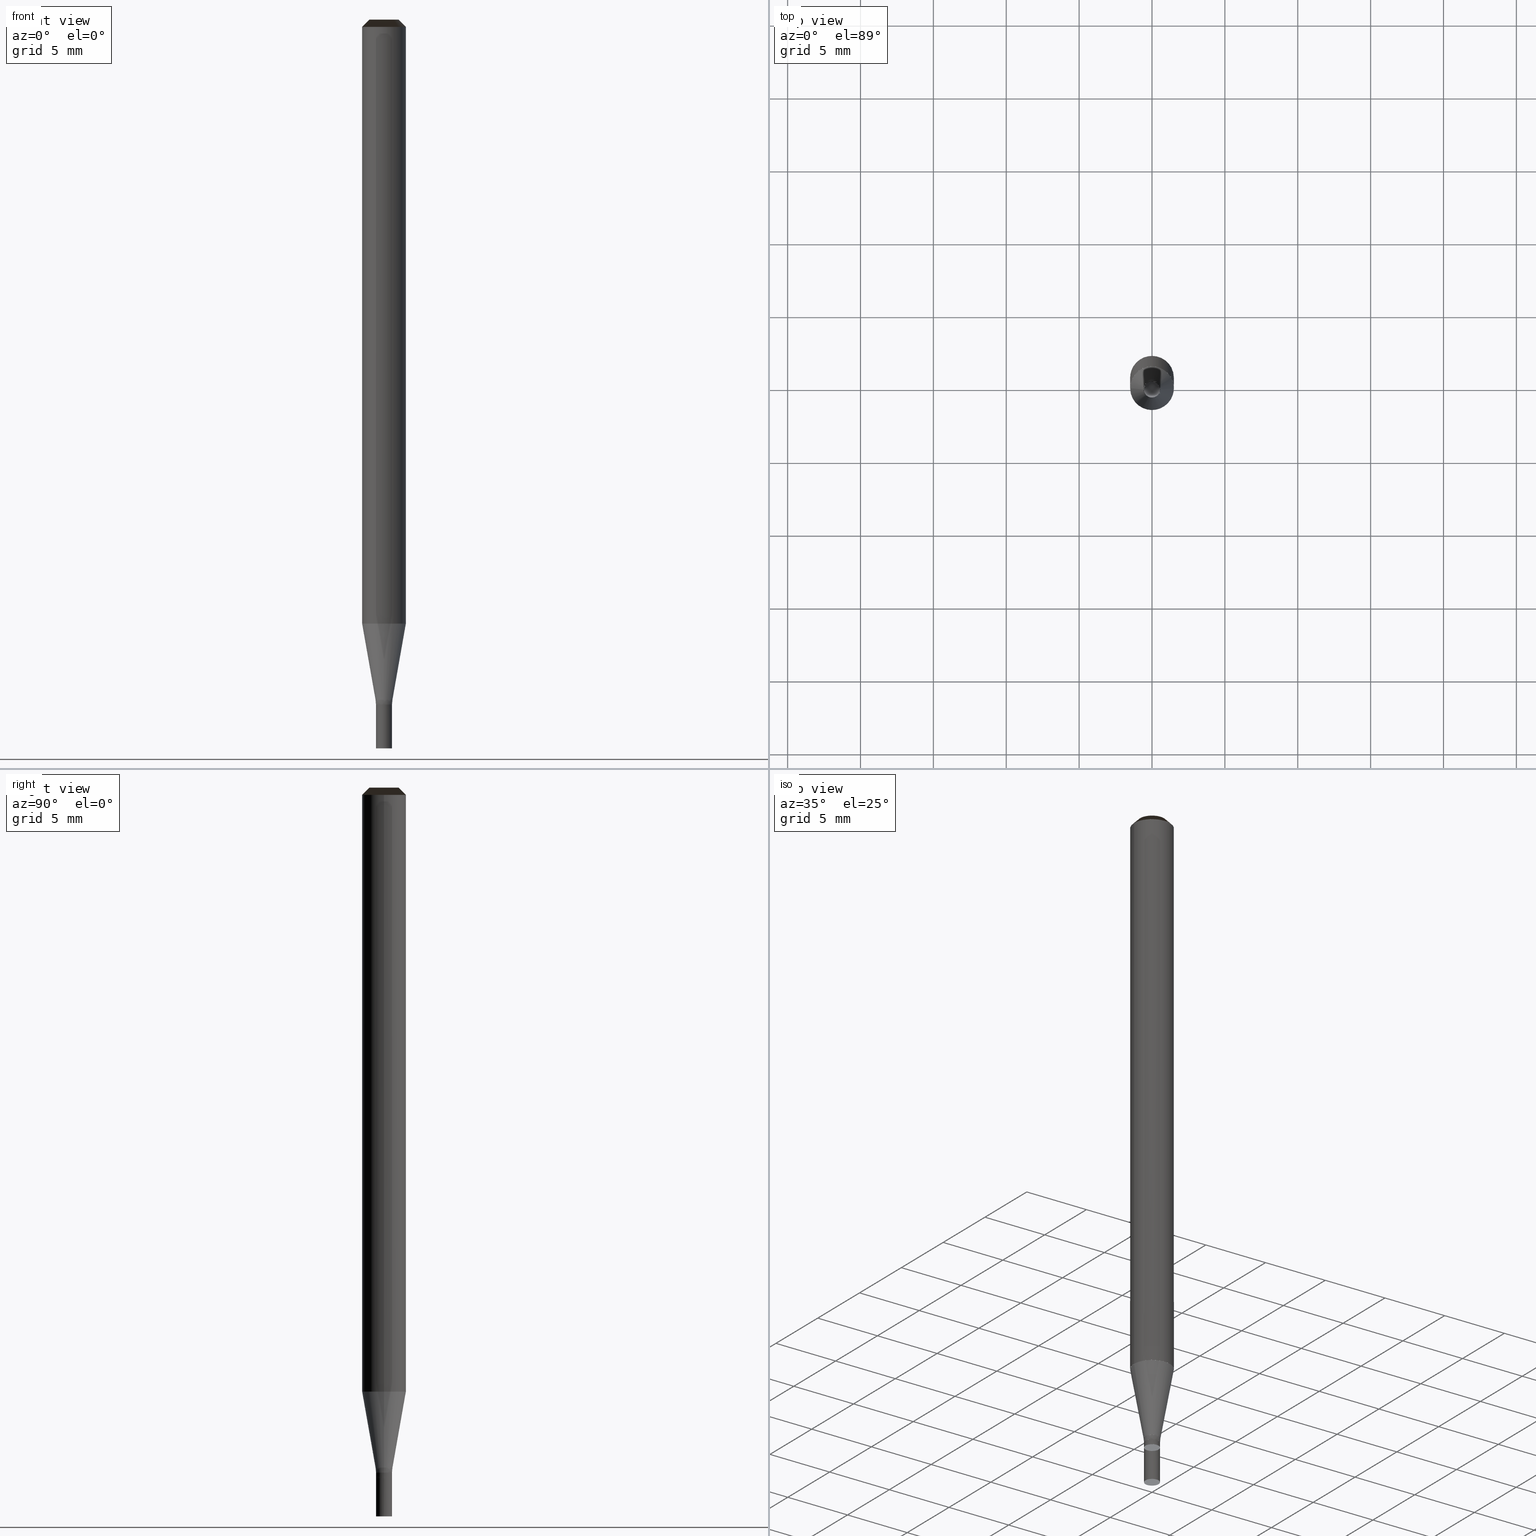
[diagram: canonical four-view strip — front | top / right | iso, engineering-drawing reading convention]
A machine part, canonical four-view strip (front | top / right | iso — engineering-drawing reading convention). The complete STEP part file that produces these views, byte-faithful:
ISO-10303-21;
HEADER;
/* Generated by ISBE GmbH (www.isbe.de) */
/* OPTION: using custom schema-name function */

FILE_DESCRIPTION(
/* description */ (''),
/* implementation_level */ '2;1');

FILE_NAME(
/*name*/ '2540500011',
/*time_stamp*/'2020-3-26T13:56:42',
/*author*/ ('ISBE GmbH'),
/*organization*/ ('ISBE GmbH'),
/*preprocessor_version*/ 'STEP IO v1.0',
/*originating_system*/ '',
/*authorisation*/ '');

FILE_SCHEMA (('AUTOMOTIVE_DESIGN'));
ENDSEC;

DATA;
#10=SHAPE_DEFINITION_REPRESENTATION(#11,#53);
#11=PRODUCT_DEFINITION_SHAPE('Document','',#13);
#12=PRODUCT_DEFINITION_CONTEXT('3D Mechanical Parts',#17,'design');
#13=PRODUCT_DEFINITION('A','First version',#14,#12);
#14=PRODUCT_DEFINITION_FORMATION_WITH_SPECIFIED_SOURCE('A','First version',#19,.MADE.);
#15=PRODUCT_RELATED_PRODUCT_CATEGORY('tool','tool',(#19));
#16=APPLICATION_PROTOCOL_DEFINITION('Draft International Standard', 'automotive_design',1999,#17);
#17=APPLICATION_CONTEXT('data for automotive mechanical design processes');
#18=PRODUCT_CONTEXT('3D Mechanical Parts',#17,'mechanical');
#19=PRODUCT('Document','Document','ISBE converted to STEP',(#18));
#20=(
LENGTH_UNIT()
NAMED_UNIT(*)
SI_UNIT(.MILLI.,.METRE.)
);
#21=(
NAMED_UNIT(*)
PLANE_ANGLE_UNIT()
SI_UNIT($,.RADIAN.)
);
#22=DIMENSIONAL_EXPONENTS(0.,0.,0.,0.,0.,0.,0.);
#23=PLANE_ANGLE_MEASURE_WITH_UNIT(PLANE_ANGLE_MEASURE(0.01745329252),#21);
#24=(
CONVERSION_BASED_UNIT('DEGREES',#23)
NAMED_UNIT(#22)
PLANE_ANGLE_UNIT()
);
#25=(
NAMED_UNIT(*)
SI_UNIT($,.STERADIAN.)
SOLID_ANGLE_UNIT()
);
#26=UNCERTAINTY_MEASURE_WITH_UNIT(LENGTH_MEASURE(0.001),#20, 'DISTANCE_ACCURACY_VALUE', 'Maximum model space distance between geometric entities at asserted connectivities');
#27=(
GEOMETRIC_REPRESENTATION_CONTEXT(3)
GLOBAL_UNCERTAINTY_ASSIGNED_CONTEXT((#26))
GLOBAL_UNIT_ASSIGNED_CONTEXT((#25,#24,#20))
REPRESENTATION_CONTEXT('ID1','3D')
);
#28=CARTESIAN_POINT('',(0.0,0.0,0.0));
#29=DIRECTION('',(1.0,0.0,0.0));
#30=DIRECTION('',(0.0,0.0,1.0));
#31=AXIS2_PLACEMENT_3D('',#28,#30,#29);
#32=CARTESIAN_POINT('',(0.0,0.0,0.0));
#33=DIRECTION('',(1.0,0.0,0.0));
#34=DIRECTION('',(0.0,0.0,1.0));
#35=AXIS2_PLACEMENT_3D('',#32,#34,#33);
#36=CARTESIAN_POINT('',(0.0,0.0,0.0));
#37=DIRECTION('',(1.0,0.0,0.0));
#38=DIRECTION('',(0.0,0.0,1.0));
#39=AXIS2_PLACEMENT_3D('',#36,#38,#37);
#40=CARTESIAN_POINT('',(0.0,0.0,0.0));
#41=DIRECTION('',(0.0,0.0,1.0));
#42=DIRECTION('',(1.0,0.0,0.0));
#43=AXIS2_PLACEMENT_3D('MCS',#40,#42,#41);
#44=CARTESIAN_POINT('',(0.0,0.0,41.437304944311));
#45=DIRECTION('',(0.0,0.0,1.0));
#46=DIRECTION('',(1.0,0.0,0.0));
#47=AXIS2_PLACEMENT_3D('PCS',#44,#46,#45);
#48=CARTESIAN_POINT('',(0.0,0.0,-8.562695055689));
#49=DIRECTION('',(0.0,0.0,1.0));
#50=DIRECTION('',(1.0,0.0,0.0));
#51=AXIS2_PLACEMENT_3D('CIP',#48,#50,#49);
#53=SHAPE_REPRESENTATION('Document',(#31,#35,#39,#43,#47,#51),#27);
#54=DIRECTION('',(1.0,0.0,0.0));
#55=DIRECTION('',(0.0,0.0,1.0));
#56=CARTESIAN_POINT('',(-0.005499724993,-0.000055,-8.562695055689));
#57=CARTESIAN_POINT('',(-0.005401878598,-0.009839150309,-8.562695055689));
#58=CARTESIAN_POINT('',(-0.005282076955,-0.021818715539,-8.562695055689));
#59=CARTESIAN_POINT('',(-0.005167512329,-0.033274605286,-8.562695055689));
#60=CARTESIAN_POINT('',(-0.005054126885,-0.044612582757,-8.562695055689));
#61=CARTESIAN_POINT('',(-0.004941202005,-0.055904506099,-8.562695055689));
#62=CARTESIAN_POINT('',(-0.004828505196,-0.067173623544,-8.562695055689));
#63=CARTESIAN_POINT('',(-0.004715938071,-0.078429773147,-8.562695055689));
#64=CARTESIAN_POINT('',(-0.004603451767,-0.089677841116,-8.562695055689));
#65=CARTESIAN_POINT('',(-0.004491019245,-0.10092053117,-8.562695055689));
#66=CARTESIAN_POINT('',(-0.004378624323,-0.112159461335,-8.562695055689));
#67=CARTESIAN_POINT('',(-0.004266256724,-0.12339565943,-8.562695055689));
#68=CARTESIAN_POINT('',(-0.004153909603,-0.134629809792,-8.562695055689));
#69=CARTESIAN_POINT('',(-0.004041578227,-0.145862385743,-8.562695055689));
#70=CARTESIAN_POINT('',(-0.003929259217,-0.157093725123,-8.562695055689));
#71=CARTESIAN_POINT('',(-0.003816950097,-0.168324075542,-8.562695055689));
#72=CARTESIAN_POINT('',(-0.003704649011,-0.179553622624,-8.562695055689));
#73=CARTESIAN_POINT('',(-0.00359235454,-0.190782508264,-8.562695055689));
#74=CARTESIAN_POINT('',(-0.00348006558,-0.202010842792,-8.562695055689));
#75=CARTESIAN_POINT('',(-0.00336778126,-0.213238713288,-8.562695055689));
#76=CARTESIAN_POINT('',(-0.003255500885,-0.224466189404,-8.562695055689));
#77=CARTESIAN_POINT('',(-0.00314322389,-0.235693327511,-8.562695055689));
#78=CARTESIAN_POINT('',(-0.003030949814,-0.246920173728,-8.562695055689));
#79=CARTESIAN_POINT('',(-0.002918678276,-0.258146766144,-8.562695055689));
#80=CARTESIAN_POINT('',(-0.002806408959,-0.2693731365,-8.562695055689));
#81=CARTESIAN_POINT('',(-0.002694141596,-0.280599311453,-8.562695055689));
#82=CARTESIAN_POINT('',(-0.002581875961,-0.291825313558,-8.562695055689));
#83=CARTESIAN_POINT('',(-0.002469611863,-0.303051162028,-8.562695055689));
#84=CARTESIAN_POINT('',(-0.002357349137,-0.314276873328,-8.562695055689));
#85=CARTESIAN_POINT('',(-0.002245087641,-0.325502461654,-8.562695055689));
#86=CARTESIAN_POINT('',(-0.002132827251,-0.336727939305,-8.562695055689));
#87=CARTESIAN_POINT('',(-0.002020567861,-0.347953316996,-8.562695055689));
#88=CARTESIAN_POINT('',(-0.001908309377,-0.359178604099,-8.562695055689));
#89=CARTESIAN_POINT('',(-0.001796051716,-0.370403808852,-8.562695055689));
#90=CARTESIAN_POINT('',(-0.001683794807,-0.381628938522,-8.562695055689));
#91=CARTESIAN_POINT('',(-0.001571538583,-0.392853999547,-8.562695055689));
#92=CARTESIAN_POINT('',(-0.001459282989,-0.404078997649,-8.562695055689));
#93=CARTESIAN_POINT('',(-0.001347027974,-0.415303937929,-8.562695055689));
#94=CARTESIAN_POINT('',(-0.001234773491,-0.426528824954,-8.562695055689));
#95=CARTESIAN_POINT('',(-0.001122519499,-0.43775366282,-8.562695055689));
#96=CARTESIAN_POINT('',(-0.001010265962,-0.448978455216,-8.562695055689));
#97=CARTESIAN_POINT('',(-0.000898012847,-0.460203205469,-8.562695055689));
#98=CARTESIAN_POINT('',(-0.000785760123,-0.47142791659,-8.562695055689));
#99=CARTESIAN_POINT('',(-0.000673507763,-0.482652591308,-8.562695055689));
#100=CARTESIAN_POINT('',(-0.000561255742,-0.493877232107,-8.562695055689));
#101=CARTESIAN_POINT('',(-0.000449004038,-0.505101841248,-8.562695055689));
#102=CARTESIAN_POINT('',(-0.00033675263,-0.516326420796,-8.562695055689));
#103=CARTESIAN_POINT('',(-0.000224501499,-0.527550972639,-8.562695055689));
#104=CARTESIAN_POINT('',(-0.000112250628,-0.538775498511,-8.562695055689));
#105=CARTESIAN_POINT('',(0.0,-0.55,-8.562695055689));
#106=CARTESIAN_POINT('',(0.010410612603,-0.549901463123,-8.51351472782));
#107=CARTESIAN_POINT('',(0.020817494918,-0.549605887801,-8.464334399951));
#108=CARTESIAN_POINT('',(0.031216917993,-0.549113379942,-8.415154072082));
#109=CARTESIAN_POINT('',(0.04160515555,-0.548424116019,-8.365973744213));
#110=CARTESIAN_POINT('',(0.051978485318,-0.547538343008,-8.316793416344));
#111=CARTESIAN_POINT('',(0.062333190366,-0.546456378295,-8.267613088476));
#112=CARTESIAN_POINT('',(0.072665560441,-0.545178609564,-8.218432760607));
#113=CARTESIAN_POINT('',(0.082971893289,-0.543705494661,-8.169252432738));
#114=CARTESIAN_POINT('',(0.093248495987,-0.542037561426,-8.120072104869));
#115=CARTESIAN_POINT('',(0.103491686265,-0.540175407506,-8.070891777));
#116=CARTESIAN_POINT('',(0.113697793824,-0.538119700141,-8.021711449131));
#117=CARTESIAN_POINT('',(0.123863161655,-0.535871175923,-7.972531121262));
#118=CARTESIAN_POINT('',(0.133984147344,-0.533430640534,-7.923350793394));
#119=CARTESIAN_POINT('',(0.14405712438,-0.530798968457,-7.874170465525));
#120=CARTESIAN_POINT('',(0.154078483455,-0.527977102663,-7.824990137656));
#121=CARTESIAN_POINT('',(0.164044633758,-0.524966054269,-7.775809809787));
#122=CARTESIAN_POINT('',(0.173952004258,-0.521766902184,-7.726629481918));
#123=CARTESIAN_POINT('',(0.183797044987,-0.518380792713,-7.677449154049));
#124=CARTESIAN_POINT('',(0.193576228309,-0.514808939155,-7.62826882618));
#125=CARTESIAN_POINT('',(0.203286050188,-0.51105262136,-7.579088498312));
#126=CARTESIAN_POINT('',(0.212923031439,-0.507113185278,-7.529908170443));
#127=CARTESIAN_POINT('',(0.22248371898,-0.502992042471,-7.480727842574));
#128=CARTESIAN_POINT('',(0.231964687063,-0.49869066961,-7.431547514705));
#129=CARTESIAN_POINT('',(0.241362538508,-0.494210607945,-7.382367186836));
#130=CARTESIAN_POINT('',(0.250673905913,-0.489553462754,-7.333186858967));
#131=CARTESIAN_POINT('',(0.259895452869,-0.484720902766,-7.284006531099));
#132=CARTESIAN_POINT('',(0.269023875147,-0.479714659564,-7.23482620323));
#133=CARTESIAN_POINT('',(0.27805590189,-0.474536526965,-7.185645875361));
#134=CARTESIAN_POINT('',(0.286988296777,-0.469188360377,-7.136465547492));
#135=CARTESIAN_POINT('',(0.295817859191,-0.463672076131,-7.087285219623));
#136=CARTESIAN_POINT('',(0.304541425357,-0.457989650802,-7.038104891754));
#137=CARTESIAN_POINT('',(0.313155869484,-0.452143120491,-6.988924563885));
#138=CARTESIAN_POINT('',(0.32165810488,-0.446134580105,-6.939744236017));
#139=CARTESIAN_POINT('',(0.330045085057,-0.439966182598,-6.890563908148));
#140=CARTESIAN_POINT('',(0.338313804827,-0.433640138206,-6.841383580279));
#141=CARTESIAN_POINT('',(0.346461301377,-0.427158713651,-6.79220325241));
#142=CARTESIAN_POINT('',(0.354484655328,-0.420524231331,-6.743022924541));
#143=CARTESIAN_POINT('',(0.362380991786,-0.413739068486,-6.693842596672));
#144=CARTESIAN_POINT('',(0.370147481368,-0.406805656348,-6.644662268803));
#145=CARTESIAN_POINT('',(0.377781341216,-0.39972647927,-6.595481940935));
#146=CARTESIAN_POINT('',(0.385279835997,-0.392504073832,-6.546301613066));
#147=CARTESIAN_POINT('',(0.39264027888,-0.385141027937,-6.497121285197));
#148=CARTESIAN_POINT('',(0.399860032504,-0.377639979883,-6.447940957328));
#149=CARTESIAN_POINT('',(0.406936509913,-0.370003617414,-6.398760629459));
#150=CARTESIAN_POINT('',(0.413867175495,-0.36223467676,-6.34958030159));
#151=CARTESIAN_POINT('',(0.420649545881,-0.354335941657,-6.300399973721));
#152=CARTESIAN_POINT('',(0.42728119084,-0.346310242346,-6.251219645853));
#153=CARTESIAN_POINT('',(0.433759734149,-0.338160454564,-6.202039317984));
#154=CARTESIAN_POINT('',(0.440082854441,-0.32988949851,-6.152858990115));
#155=CARTESIAN_POINT('',(0.446248286043,-0.321500337797,-6.103678662246));
#156=CARTESIAN_POINT('',(0.452253819782,-0.312995978398,-6.054498334377));
#157=CARTESIAN_POINT('',(0.458097303779,-0.304379467557,-6.005318006508));
#158=CARTESIAN_POINT('',(0.463776644222,-0.295653892709,-5.956137678639));
#159=CARTESIAN_POINT('',(0.005499724993,0.000055,-8.562695055689));
#160=CARTESIAN_POINT('',(0.005401878598,0.009839150309,-8.562695055689));
#161=CARTESIAN_POINT('',(0.005282076955,0.021818715539,-8.562695055689));
#162=CARTESIAN_POINT('',(0.005167512329,0.033274605286,-8.562695055689));
#163=CARTESIAN_POINT('',(0.005054126885,0.044612582757,-8.562695055689));
#164=CARTESIAN_POINT('',(0.004941202005,0.055904506099,-8.562695055689));
#165=CARTESIAN_POINT('',(0.004828505196,0.067173623544,-8.562695055689));
#166=CARTESIAN_POINT('',(0.004715938071,0.078429773147,-8.562695055689));
#167=CARTESIAN_POINT('',(0.004603451767,0.089677841116,-8.562695055689));
#168=CARTESIAN_POINT('',(0.004491019245,0.10092053117,-8.562695055689));
#169=CARTESIAN_POINT('',(0.004378624323,0.112159461335,-8.562695055689));
#170=CARTESIAN_POINT('',(0.004266256724,0.12339565943,-8.562695055689));
#171=CARTESIAN_POINT('',(0.004153909603,0.134629809792,-8.562695055689));
#172=CARTESIAN_POINT('',(0.004041578227,0.145862385743,-8.562695055689));
#173=CARTESIAN_POINT('',(0.003929259217,0.157093725123,-8.562695055689));
#174=CARTESIAN_POINT('',(0.003816950097,0.168324075542,-8.562695055689));
#175=CARTESIAN_POINT('',(0.003704649011,0.179553622624,-8.562695055689));
#176=CARTESIAN_POINT('',(0.00359235454,0.190782508264,-8.562695055689));
#177=CARTESIAN_POINT('',(0.00348006558,0.202010842792,-8.562695055689));
#178=CARTESIAN_POINT('',(0.00336778126,0.213238713288,-8.562695055689));
#179=CARTESIAN_POINT('',(0.003255500885,0.224466189404,-8.562695055689));
#180=CARTESIAN_POINT('',(0.00314322389,0.235693327511,-8.562695055689));
#181=CARTESIAN_POINT('',(0.003030949814,0.246920173728,-8.562695055689));
#182=CARTESIAN_POINT('',(0.002918678276,0.258146766144,-8.562695055689));
#183=CARTESIAN_POINT('',(0.002806408959,0.2693731365,-8.562695055689));
#184=CARTESIAN_POINT('',(0.002694141596,0.280599311453,-8.562695055689));
#185=CARTESIAN_POINT('',(0.002581875961,0.291825313558,-8.562695055689));
#186=CARTESIAN_POINT('',(0.002469611863,0.303051162028,-8.562695055689));
#187=CARTESIAN_POINT('',(0.002357349137,0.314276873328,-8.562695055689));
#188=CARTESIAN_POINT('',(0.002245087641,0.325502461654,-8.562695055689));
#189=CARTESIAN_POINT('',(0.002132827251,0.336727939305,-8.562695055689));
#190=CARTESIAN_POINT('',(0.002020567861,0.347953316996,-8.562695055689));
#191=CARTESIAN_POINT('',(0.001908309377,0.359178604099,-8.562695055689));
#192=CARTESIAN_POINT('',(0.001796051716,0.370403808852,-8.562695055689));
#193=CARTESIAN_POINT('',(0.001683794807,0.381628938522,-8.562695055689));
#194=CARTESIAN_POINT('',(0.001571538583,0.392853999547,-8.562695055689));
#195=CARTESIAN_POINT('',(0.001459282989,0.404078997649,-8.562695055689));
#196=CARTESIAN_POINT('',(0.001347027974,0.415303937929,-8.562695055689));
#197=CARTESIAN_POINT('',(0.001234773491,0.426528824954,-8.562695055689));
#198=CARTESIAN_POINT('',(0.001122519499,0.43775366282,-8.562695055689));
#199=CARTESIAN_POINT('',(0.001010265962,0.448978455216,-8.562695055689));
#200=CARTESIAN_POINT('',(0.000898012847,0.460203205469,-8.562695055689));
#201=CARTESIAN_POINT('',(0.000785760123,0.47142791659,-8.562695055689));
#202=CARTESIAN_POINT('',(0.000673507763,0.482652591308,-8.562695055689));
#203=CARTESIAN_POINT('',(0.000561255742,0.493877232107,-8.562695055689));
#204=CARTESIAN_POINT('',(0.000449004038,0.505101841248,-8.562695055689));
#205=CARTESIAN_POINT('',(0.00033675263,0.516326420796,-8.562695055689));
#206=CARTESIAN_POINT('',(0.000224501499,0.527550972639,-8.562695055689));
#207=CARTESIAN_POINT('',(0.000112250628,0.538775498511,-8.562695055689));
#208=CARTESIAN_POINT('',(0.0,0.55,-8.562695055689));
#209=CARTESIAN_POINT('',(-0.010410612603,0.549901463123,-8.51351472782));
#210=CARTESIAN_POINT('',(-0.020817494918,0.549605887801,-8.464334399951));
#211=CARTESIAN_POINT('',(-0.031216917993,0.549113379942,-8.415154072082));
#212=CARTESIAN_POINT('',(-0.04160515555,0.548424116019,-8.365973744213));
#213=CARTESIAN_POINT('',(-0.051978485318,0.547538343008,-8.316793416344));
#214=CARTESIAN_POINT('',(-0.062333190366,0.546456378295,-8.267613088476));
#215=CARTESIAN_POINT('',(-0.072665560441,0.545178609564,-8.218432760607));
#216=CARTESIAN_POINT('',(-0.082971893289,0.543705494661,-8.169252432738));
#217=CARTESIAN_POINT('',(-0.093248495987,0.542037561426,-8.120072104869));
#218=CARTESIAN_POINT('',(-0.103491686265,0.540175407506,-8.070891777));
#219=CARTESIAN_POINT('',(-0.113697793824,0.538119700141,-8.021711449131));
#220=CARTESIAN_POINT('',(-0.123863161655,0.535871175923,-7.972531121262));
#221=CARTESIAN_POINT('',(-0.133984147343,0.533430640534,-7.923350793394));
#222=CARTESIAN_POINT('',(-0.14405712438,0.530798968457,-7.874170465525));
#223=CARTESIAN_POINT('',(-0.154078483455,0.527977102663,-7.824990137656));
#224=CARTESIAN_POINT('',(-0.164044633758,0.524966054269,-7.775809809787));
#225=CARTESIAN_POINT('',(-0.173952004258,0.521766902184,-7.726629481918));
#226=CARTESIAN_POINT('',(-0.183797044987,0.518380792713,-7.677449154049));
#227=CARTESIAN_POINT('',(-0.193576228309,0.514808939155,-7.62826882618));
#228=CARTESIAN_POINT('',(-0.203286050188,0.51105262136,-7.579088498312));
#229=CARTESIAN_POINT('',(-0.212923031439,0.507113185278,-7.529908170443));
#230=CARTESIAN_POINT('',(-0.22248371898,0.502992042471,-7.480727842574));
#231=CARTESIAN_POINT('',(-0.231964687063,0.49869066961,-7.431547514705));
#232=CARTESIAN_POINT('',(-0.241362538508,0.494210607945,-7.382367186836));
#233=CARTESIAN_POINT('',(-0.250673905913,0.489553462754,-7.333186858967));
#234=CARTESIAN_POINT('',(-0.259895452869,0.484720902766,-7.284006531099));
#235=CARTESIAN_POINT('',(-0.269023875147,0.479714659564,-7.23482620323));
#236=CARTESIAN_POINT('',(-0.27805590189,0.474536526965,-7.185645875361));
#237=CARTESIAN_POINT('',(-0.286988296777,0.469188360377,-7.136465547492));
#238=CARTESIAN_POINT('',(-0.295817859191,0.463672076131,-7.087285219623));
#239=CARTESIAN_POINT('',(-0.304541425357,0.457989650802,-7.038104891754));
#240=CARTESIAN_POINT('',(-0.313155869484,0.452143120491,-6.988924563885));
#241=CARTESIAN_POINT('',(-0.32165810488,0.446134580105,-6.939744236017));
#242=CARTESIAN_POINT('',(-0.330045085057,0.439966182598,-6.890563908148));
#243=CARTESIAN_POINT('',(-0.338313804827,0.433640138206,-6.841383580279));
#244=CARTESIAN_POINT('',(-0.346461301377,0.427158713651,-6.79220325241));
#245=CARTESIAN_POINT('',(-0.354484655328,0.420524231331,-6.743022924541));
#246=CARTESIAN_POINT('',(-0.362380991786,0.413739068486,-6.693842596672));
#247=CARTESIAN_POINT('',(-0.370147481368,0.406805656348,-6.644662268803));
#248=CARTESIAN_POINT('',(-0.377781341216,0.39972647927,-6.595481940935));
#249=CARTESIAN_POINT('',(-0.385279835997,0.392504073832,-6.546301613066));
#250=CARTESIAN_POINT('',(-0.39264027888,0.385141027937,-6.497121285197));
#251=CARTESIAN_POINT('',(-0.399860032504,0.377639979883,-6.447940957328));
#252=CARTESIAN_POINT('',(-0.406936509913,0.370003617414,-6.398760629459));
#253=CARTESIAN_POINT('',(-0.413867175495,0.36223467676,-6.34958030159));
#254=CARTESIAN_POINT('',(-0.420649545881,0.354335941657,-6.300399973721));
#255=CARTESIAN_POINT('',(-0.42728119084,0.346310242346,-6.251219645853));
#256=CARTESIAN_POINT('',(-0.433759734149,0.338160454564,-6.202039317984));
#257=CARTESIAN_POINT('',(-0.440082854441,0.32988949851,-6.152858990115));
#258=CARTESIAN_POINT('',(-0.446248286043,0.321500337797,-6.103678662246));
#259=CARTESIAN_POINT('',(-0.452253819782,0.312995978398,-6.054498334377));
#260=CARTESIAN_POINT('',(-0.458097303779,0.304379467557,-6.005318006508));
#261=CARTESIAN_POINT('',(-0.463776644222,0.295653892709,-5.956137678639));
#262=CARTESIAN_POINT('',(0.0,0.0,-8.562695055689));
#263=CARTESIAN_POINT('',(0.55,0.0,-8.562695055689));
#264=CARTESIAN_POINT('',(0.55,0.55,-8.562695055689));
#265=CARTESIAN_POINT('',(-0.55,0.55,-8.562695055689));
#266=CARTESIAN_POINT('',(-0.55,0.0,-8.562695055689));
#267=CARTESIAN_POINT('',(0.55,0.0,-5.937695055689));
#268=CARTESIAN_POINT('',(0.55,0.55,-5.937695055689));
#269=CARTESIAN_POINT('',(0.0,0.55,-5.937695055689));
#270=CARTESIAN_POINT('',(-0.55,0.55,-5.937695055689));
#271=CARTESIAN_POINT('',(-0.55,0.0,-5.937695055689));
#272=CARTESIAN_POINT('',(0.0,0.0,-5.937695055689));
#273=CARTESIAN_POINT('',(-0.55,-0.55,-8.562695055689));
#274=CARTESIAN_POINT('',(0.55,-0.55,-8.562695055689));
#275=CARTESIAN_POINT('',(-0.55,-0.55,-5.937695055689));
#276=CARTESIAN_POINT('',(0.0,-0.55,-5.937695055689));
#277=CARTESIAN_POINT('',(0.55,-0.55,-5.937695055689));
#278=CARTESIAN_POINT('',(0.55,0.0,-5.562695055689));
#279=CARTESIAN_POINT('',(0.55,0.55,-5.562695055689));
#280=CARTESIAN_POINT('',(0.0,0.55,-5.562695055689));
#281=CARTESIAN_POINT('',(-0.55,0.55,-5.562695055689));
#282=CARTESIAN_POINT('',(-0.55,0.0,-5.562695055689));
#283=CARTESIAN_POINT('',(0.55,0.0,-5.387717728637));
#284=CARTESIAN_POINT('',(0.55,0.55,-5.387717728637));
#285=CARTESIAN_POINT('',(0.0,0.55,-5.387717728637));
#286=CARTESIAN_POINT('',(-0.55,0.55,-5.387717728637));
#287=CARTESIAN_POINT('',(-0.55,0.0,-5.387717728637));
#288=CARTESIAN_POINT('',(0.580384493976,0.0,-5.215398700355));
#289=CARTESIAN_POINT('',(0.580384493976,0.580384493976,-5.215398700355));
#290=CARTESIAN_POINT('',(0.0,0.580384493976,-5.215398700355));
#291=CARTESIAN_POINT('',(-0.580384493976,0.580384493976,-5.215398700355));
#292=CARTESIAN_POINT('',(-0.580384493976,0.0,-5.215398700355));
#293=CARTESIAN_POINT('',(1.5,0.0,-0.0));
#294=CARTESIAN_POINT('',(1.5,1.5,-0.0));
#295=CARTESIAN_POINT('',(0.0,1.5,-0.0));
#296=CARTESIAN_POINT('',(-1.5,1.5,-0.0));
#297=CARTESIAN_POINT('',(-1.5,0.0,-0.0));
#298=CARTESIAN_POINT('',(1.5,0.0,40.937304944311));
#299=CARTESIAN_POINT('',(1.5,1.5,40.937304944311));
#300=CARTESIAN_POINT('',(0.0,1.5,40.937304944311));
#301=CARTESIAN_POINT('',(-1.5,1.5,40.937304944311));
#302=CARTESIAN_POINT('',(-1.5,0.0,40.937304944311));
#303=CARTESIAN_POINT('',(1.0,0.0,41.437304944311));
#304=CARTESIAN_POINT('',(1.0,1.0,41.437304944311));
#305=CARTESIAN_POINT('',(0.0,1.0,41.437304944311));
#306=CARTESIAN_POINT('',(-1.0,1.0,41.437304944311));
#307=CARTESIAN_POINT('',(-1.0,0.0,41.437304944311));
#308=CARTESIAN_POINT('',(0.0,0.0,41.437304944311));
#309=CARTESIAN_POINT('',(-0.55,-0.55,-5.562695055689));
#310=CARTESIAN_POINT('',(0.0,-0.55,-5.562695055689));
#311=CARTESIAN_POINT('',(0.55,-0.55,-5.562695055689));
#312=CARTESIAN_POINT('',(-0.55,-0.55,-5.387717728637));
#313=CARTESIAN_POINT('',(0.0,-0.55,-5.387717728637));
#314=CARTESIAN_POINT('',(0.55,-0.55,-5.387717728637));
#315=CARTESIAN_POINT('',(-0.580384493976,-0.580384493976,-5.215398700355));
#316=CARTESIAN_POINT('',(0.0,-0.580384493976,-5.215398700355));
#317=CARTESIAN_POINT('',(0.580384493976,-0.580384493976,-5.215398700355));
#318=CARTESIAN_POINT('',(-1.5,-1.5,-0.0));
#319=CARTESIAN_POINT('',(0.0,-1.5,-0.0));
#320=CARTESIAN_POINT('',(1.5,-1.5,-0.0));
#321=CARTESIAN_POINT('',(-1.5,-1.5,40.937304944311));
#322=CARTESIAN_POINT('',(0.0,-1.5,40.937304944311));
#323=CARTESIAN_POINT('',(1.5,-1.5,40.937304944311));
#324=CARTESIAN_POINT('',(-1.0,-1.0,41.437304944311));
#325=CARTESIAN_POINT('',(0.0,-1.0,41.437304944311));
#326=CARTESIAN_POINT('',(1.0,-1.0,41.437304944311));
#327=(
BOUNDED_CURVE()
B_SPLINE_CURVE(1,(#56,#57,#58,#59,#60,#61,#62,#63,#64,#65,#66,#67,#68,#69,#70,#71,#72,#73,#74,#75,#76,#77,#78,#79,#80,#81,#82,#83,#84,#85,#86,#87,#88,#89,#90,#91,#92,#93,#94,#95,#96,#97,#98,#99,#100,#101,#102,#103,#104,#105,#106,#107,#108,#109,#110,#111,#112,#113,#114,#115,#116,#117,#118,#119,#120,#121,#122,#123,#124,#125,#126,#127,#128,#129,#130,#131,#132,#133,#134,#135,#136,#137,#138,#139,#140,#141,#142,#143,#144,#145,#146,#147,#148,#149,#150,#151,#152,#153,#154,#155,#156,#157,#158),.UNSPECIFIED.,.F.,.F.)
B_SPLINE_CURVE_WITH_KNOTS((2,1,1,1,1,1,1,1,1,1,1,1,1,1,1,1,1,1,1,1,1,1,1,1,1,1,1,1,1,1,1,1,1,1,1,1,1,1,1,1,1,1,1,1,1,1,1,1,1,1,1,1,1,1,1,1,1,1,1,1,1,1,1,1,1,1,1,1,1,1,1,1,1,1,1,1,1,1,1,1,1,1,1,1,1,1,1,1,1,1,1,1,1,1,1,1,1,1,1,1,1,1,2),
(0.0,0.003044101988,0.006771254289,0.010335477614,0.013863015384,0.017376224525,0.020882338161,0.024384417166,0.027883981767,0.031381873159,0.034878594752,0.038374466328,0.041869700802,0.045364445435,0.048858805339,0.052352857552,0.055846659826,0.059340256308,0.062833681325,0.06632696197,0.069820119913,0.073313172692,0.076806134657,0.080299017658,0.083791831571,0.087284584688,0.090777284028,0.094269935568,0.097762544431,0.101255115034,0.104747651203,0.108240156271,0.111732633155,0.115225084419,0.118717512322,0.122209918867,0.125702305836,0.129194674815,0.132687027224,0.13617936434,0.139671687308,0.143163997164,0.146656294846,0.150148581201,0.153640857004,0.157133122957,0.160625379702,0.164117627828,0.167609867874,0.171102100334,0.186741683346,0.202381266359,0.218020849371,0.233660432384,0.249300015397,0.264939598409,0.280579181422,0.296218764434,0.311858347447,0.327497930459,0.343137513472,0.358777096485,0.374416679497,0.39005626251,0.405695845522,0.421335428535,0.436975011547,0.45261459456,0.468254177573,0.483893760585,0.499533343598,0.51517292661,0.530812509623,0.546452092635,0.562091675648,0.577731258661,0.593370841673,0.609010424686,0.624650007698,0.640289590711,0.655929173723,0.671568756736,0.687208339749,0.702847922761,0.718487505774,0.734127088786,0.749766671799,0.765406254811,0.781045837824,0.796685420837,0.812325003849,0.827964586862,0.843604169874,0.859243752887,0.874883335899,0.890522918912,0.906162501925,0.921802084937,0.93744166795,0.953081250962,0.968720833975,0.984360416987,1.0),.UNSPECIFIED.)
CURVE()
GEOMETRIC_REPRESENTATION_ITEM()
RATIONAL_B_SPLINE_CURVE((1.0,1.0,1.0,1.0,1.0,1.0,1.0,1.0,1.0,1.0,1.0,1.0,1.0,1.0,1.0,1.0,1.0,1.0,1.0,1.0,1.0,1.0,1.0,1.0,1.0,1.0,1.0,1.0,1.0,1.0,1.0,1.0,1.0,1.0,1.0,1.0,1.0,1.0,1.0,1.0,1.0,1.0,1.0,1.0,1.0,1.0,1.0,1.0,1.0,1.0,1.0,1.0,1.0,1.0,1.0,1.0,1.0,1.0,1.0,1.0,1.0,1.0,1.0,1.0,1.0,1.0,1.0,1.0,1.0,1.0,1.0,1.0,1.0,1.0,1.0,1.0,1.0,1.0,1.0,1.0,1.0,1.0,1.0,1.0,1.0,1.0,1.0,1.0,1.0,1.0,1.0,1.0,1.0,1.0,1.0,1.0,1.0,1.0,1.0,1.0,1.0,1.0,1.0))
REPRESENTATION_ITEM('')
);
#328=(
BOUNDED_CURVE()
B_SPLINE_CURVE(1,(#159,#160,#161,#162,#163,#164,#165,#166,#167,#168,#169,#170,#171,#172,#173,#174,#175,#176,#177,#178,#179,#180,#181,#182,#183,#184,#185,#186,#187,#188,#189,#190,#191,#192,#193,#194,#195,#196,#197,#198,#199,#200,#201,#202,#203,#204,#205,#206,#207,#208,#209,#210,#211,#212,#213,#214,#215,#216,#217,#218,#219,#220,#221,#222,#223,#224,#225,#226,#227,#228,#229,#230,#231,#232,#233,#234,#235,#236,#237,#238,#239,#240,#241,#242,#243,#244,#245,#246,#247,#248,#249,#250,#251,#252,#253,#254,#255,#256,#257,#258,#259,#260,#261),.UNSPECIFIED.,.F.,.F.)
B_SPLINE_CURVE_WITH_KNOTS((2,1,1,1,1,1,1,1,1,1,1,1,1,1,1,1,1,1,1,1,1,1,1,1,1,1,1,1,1,1,1,1,1,1,1,1,1,1,1,1,1,1,1,1,1,1,1,1,1,1,1,1,1,1,1,1,1,1,1,1,1,1,1,1,1,1,1,1,1,1,1,1,1,1,1,1,1,1,1,1,1,1,1,1,1,1,1,1,1,1,1,1,1,1,1,1,1,1,1,1,1,1,2),
(0.0,0.003044101988,0.006771254289,0.010335477614,0.013863015384,0.017376224525,0.020882338161,0.024384417166,0.027883981767,0.031381873159,0.034878594752,0.038374466328,0.041869700802,0.045364445435,0.048858805339,0.052352857552,0.055846659826,0.059340256308,0.062833681325,0.06632696197,0.069820119913,0.073313172692,0.076806134657,0.080299017658,0.083791831571,0.087284584688,0.090777284028,0.094269935568,0.097762544431,0.101255115034,0.104747651203,0.108240156271,0.111732633155,0.115225084419,0.118717512322,0.122209918867,0.125702305836,0.129194674815,0.132687027224,0.13617936434,0.139671687308,0.143163997164,0.146656294846,0.150148581201,0.153640857004,0.157133122957,0.160625379702,0.164117627828,0.167609867874,0.171102100334,0.186741683346,0.202381266359,0.218020849371,0.233660432384,0.249300015397,0.264939598409,0.280579181422,0.296218764434,0.311858347447,0.327497930459,0.343137513472,0.358777096485,0.374416679497,0.39005626251,0.405695845522,0.421335428535,0.436975011547,0.45261459456,0.468254177573,0.483893760585,0.499533343598,0.51517292661,0.530812509623,0.546452092635,0.562091675648,0.577731258661,0.593370841673,0.609010424686,0.624650007698,0.640289590711,0.655929173723,0.671568756736,0.687208339749,0.702847922761,0.718487505774,0.734127088786,0.749766671799,0.765406254811,0.781045837824,0.796685420837,0.812325003849,0.827964586862,0.843604169874,0.859243752887,0.874883335899,0.890522918912,0.906162501925,0.921802084937,0.93744166795,0.953081250962,0.968720833975,0.984360416987,1.0),.UNSPECIFIED.)
CURVE()
GEOMETRIC_REPRESENTATION_ITEM()
RATIONAL_B_SPLINE_CURVE((1.0,1.0,1.0,1.0,1.0,1.0,1.0,1.0,1.0,1.0,1.0,1.0,1.0,1.0,1.0,1.0,1.0,1.0,1.0,1.0,1.0,1.0,1.0,1.0,1.0,1.0,1.0,1.0,1.0,1.0,1.0,1.0,1.0,1.0,1.0,1.0,1.0,1.0,1.0,1.0,1.0,1.0,1.0,1.0,1.0,1.0,1.0,1.0,1.0,1.0,1.0,1.0,1.0,1.0,1.0,1.0,1.0,1.0,1.0,1.0,1.0,1.0,1.0,1.0,1.0,1.0,1.0,1.0,1.0,1.0,1.0,1.0,1.0,1.0,1.0,1.0,1.0,1.0,1.0,1.0,1.0,1.0,1.0,1.0,1.0,1.0,1.0,1.0,1.0,1.0,1.0,1.0,1.0,1.0,1.0,1.0,1.0,1.0,1.0,1.0,1.0,1.0,1.0))
REPRESENTATION_ITEM('')
);
#329=SHAPE_REPRESENTATION_RELATIONSHIP('','',#53,#330);
#330=GEOMETRICALLY_BOUNDED_WIREFRAME_SHAPE_REPRESENTATION('Curves',(#331,#31),#27);
#331=GEOMETRIC_CURVE_SET('CurveSet',(#327,#328));
#332=(
BOUNDED_SURFACE()
B_SPLINE_SURFACE(1,2,(
(#262,#262,#262,#262,#262),
(#263,#264,#208,#265,#266)
), .UNSPECIFIED.,.F.,.F.,.F.)
B_SPLINE_SURFACE_WITH_KNOTS((2,2),(3,2,3),(
0.0,1.0),(
0.0,0.5,1.0), .UNSPECIFIED.)
GEOMETRIC_REPRESENTATION_ITEM()
RATIONAL_B_SPLINE_SURFACE(((1.0,0.707106781187,1.0,0.707106781187,1.0),
(1.0,0.707106781187,1.0,0.707106781187,1.0)
))
REPRESENTATION_ITEM('')
SURFACE()
);
#333=(
BOUNDED_CURVE()
B_SPLINE_CURVE(1,(#266,#262),.UNSPECIFIED.,.F.,.F.)
B_SPLINE_CURVE_WITH_KNOTS((2,2),
(0.0,1.0),.UNSPECIFIED.)
CURVE()
GEOMETRIC_REPRESENTATION_ITEM()
RATIONAL_B_SPLINE_CURVE((1.0,1.0))
REPRESENTATION_ITEM('')
);
#334=(
BOUNDED_CURVE()
B_SPLINE_CURVE(1,(#262,#263),.UNSPECIFIED.,.F.,.F.)
B_SPLINE_CURVE_WITH_KNOTS((2,2),
(0.0,1.0),.UNSPECIFIED.)
CURVE()
GEOMETRIC_REPRESENTATION_ITEM()
RATIONAL_B_SPLINE_CURVE((1.0,1.0))
REPRESENTATION_ITEM('')
);
#335=(
BOUNDED_CURVE()
B_SPLINE_CURVE(2,(#263,#264,#208,#265,#266),.UNSPECIFIED.,.F.,.F.)
B_SPLINE_CURVE_WITH_KNOTS((3,2,3),
(0.0,0.5,1.0),.UNSPECIFIED.)
CURVE()
GEOMETRIC_REPRESENTATION_ITEM()
RATIONAL_B_SPLINE_CURVE((1.0,0.707106781187,1.0,0.707106781187,1.0))
REPRESENTATION_ITEM('')
);
#336=VERTEX_POINT('',#262);
#337=VERTEX_POINT('',#263);
#338=VERTEX_POINT('',#266);
#339=EDGE_CURVE('',#338,#336,#333,.T.);
#340=EDGE_CURVE('',#336,#337,#334,.T.);
#341=EDGE_CURVE('',#337,#338,#335,.T.);
#342=ORIENTED_EDGE('',*,*,#339,.T.);
#343=ORIENTED_EDGE('',*,*,#340,.T.);
#344=ORIENTED_EDGE('',*,*,#341,.T.);
#345=EDGE_LOOP('',(#342,#343,#344));
#346=FACE_OUTER_BOUND('',#345,.T.);
#347=ADVANCED_FACE('',(#346),#332,.T.);
#348=(
BOUNDED_SURFACE()
B_SPLINE_SURFACE(1,2,(
(#263,#264,#208,#265,#266),
(#267,#268,#269,#270,#271)
), .UNSPECIFIED.,.F.,.F.,.F.)
B_SPLINE_SURFACE_WITH_KNOTS((2,2),(3,2,3),(
0.0,1.0),(
0.0,0.5,1.0), .UNSPECIFIED.)
GEOMETRIC_REPRESENTATION_ITEM()
RATIONAL_B_SPLINE_SURFACE(((1.0,0.707106781187,1.0,0.707106781187,1.0),
(1.0,0.707106781187,1.0,0.707106781187,1.0)
))
REPRESENTATION_ITEM('')
SURFACE()
);
#349=(
BOUNDED_CURVE()
B_SPLINE_CURVE(2,(#266,#265,#208,#264,#263),.UNSPECIFIED.,.F.,.F.)
B_SPLINE_CURVE_WITH_KNOTS((3,2,3),
(0.0,0.5,1.0),.UNSPECIFIED.)
CURVE()
GEOMETRIC_REPRESENTATION_ITEM()
RATIONAL_B_SPLINE_CURVE((1.0,0.707106781187,1.0,0.707106781187,1.0))
REPRESENTATION_ITEM('')
);
#350=(
BOUNDED_CURVE()
B_SPLINE_CURVE(1,(#263,#267),.UNSPECIFIED.,.F.,.F.)
B_SPLINE_CURVE_WITH_KNOTS((2,2),
(0.0,1.0),.UNSPECIFIED.)
CURVE()
GEOMETRIC_REPRESENTATION_ITEM()
RATIONAL_B_SPLINE_CURVE((1.0,1.0))
REPRESENTATION_ITEM('')
);
#351=(
BOUNDED_CURVE()
B_SPLINE_CURVE(2,(#267,#268,#269,#270,#271),.UNSPECIFIED.,.F.,.F.)
B_SPLINE_CURVE_WITH_KNOTS((3,2,3),
(0.0,0.5,1.0),.UNSPECIFIED.)
CURVE()
GEOMETRIC_REPRESENTATION_ITEM()
RATIONAL_B_SPLINE_CURVE((1.0,0.707106781187,1.0,0.707106781187,1.0))
REPRESENTATION_ITEM('')
);
#352=(
BOUNDED_CURVE()
B_SPLINE_CURVE(1,(#271,#266),.UNSPECIFIED.,.F.,.F.)
B_SPLINE_CURVE_WITH_KNOTS((2,2),
(0.0,1.0),.UNSPECIFIED.)
CURVE()
GEOMETRIC_REPRESENTATION_ITEM()
RATIONAL_B_SPLINE_CURVE((1.0,1.0))
REPRESENTATION_ITEM('')
);
#353=VERTEX_POINT('',#263);
#354=VERTEX_POINT('',#266);
#355=VERTEX_POINT('',#267);
#356=VERTEX_POINT('',#271);
#357=EDGE_CURVE('',#354,#353,#349,.T.);
#358=EDGE_CURVE('',#353,#355,#350,.T.);
#359=EDGE_CURVE('',#355,#356,#351,.T.);
#360=EDGE_CURVE('',#356,#354,#352,.T.);
#361=ORIENTED_EDGE('',*,*,#357,.T.);
#362=ORIENTED_EDGE('',*,*,#358,.T.);
#363=ORIENTED_EDGE('',*,*,#359,.T.);
#364=ORIENTED_EDGE('',*,*,#360,.T.);
#365=EDGE_LOOP('',(#361,#362,#363,#364));
#366=FACE_OUTER_BOUND('',#365,.T.);
#367=ADVANCED_FACE('',(#366),#348,.T.);
#368=(
BOUNDED_SURFACE()
B_SPLINE_SURFACE(1,2,(
(#267,#268,#269,#270,#271),
(#272,#272,#272,#272,#272)
), .UNSPECIFIED.,.F.,.F.,.F.)
B_SPLINE_SURFACE_WITH_KNOTS((2,2),(3,2,3),(
0.0,1.0),(
0.0,0.5,1.0), .UNSPECIFIED.)
GEOMETRIC_REPRESENTATION_ITEM()
RATIONAL_B_SPLINE_SURFACE(((1.0,0.707106781187,1.0,0.707106781187,1.0),
(1.0,0.707106781187,1.0,0.707106781187,1.0)
))
REPRESENTATION_ITEM('')
SURFACE()
);
#369=(
BOUNDED_CURVE()
B_SPLINE_CURVE(2,(#271,#270,#269,#268,#267),.UNSPECIFIED.,.F.,.F.)
B_SPLINE_CURVE_WITH_KNOTS((3,2,3),
(0.0,0.5,1.0),.UNSPECIFIED.)
CURVE()
GEOMETRIC_REPRESENTATION_ITEM()
RATIONAL_B_SPLINE_CURVE((1.0,0.707106781187,1.0,0.707106781187,1.0))
REPRESENTATION_ITEM('')
);
#370=(
BOUNDED_CURVE()
B_SPLINE_CURVE(1,(#267,#272),.UNSPECIFIED.,.F.,.F.)
B_SPLINE_CURVE_WITH_KNOTS((2,2),
(0.0,1.0),.UNSPECIFIED.)
CURVE()
GEOMETRIC_REPRESENTATION_ITEM()
RATIONAL_B_SPLINE_CURVE((1.0,1.0))
REPRESENTATION_ITEM('')
);
#371=(
BOUNDED_CURVE()
B_SPLINE_CURVE(1,(#272,#271),.UNSPECIFIED.,.F.,.F.)
B_SPLINE_CURVE_WITH_KNOTS((2,2),
(0.0,1.0),.UNSPECIFIED.)
CURVE()
GEOMETRIC_REPRESENTATION_ITEM()
RATIONAL_B_SPLINE_CURVE((1.0,1.0))
REPRESENTATION_ITEM('')
);
#372=VERTEX_POINT('',#267);
#373=VERTEX_POINT('',#271);
#374=VERTEX_POINT('',#272);
#375=EDGE_CURVE('',#373,#372,#369,.T.);
#376=EDGE_CURVE('',#372,#374,#370,.T.);
#377=EDGE_CURVE('',#374,#373,#371,.T.);
#378=ORIENTED_EDGE('',*,*,#375,.T.);
#379=ORIENTED_EDGE('',*,*,#376,.T.);
#380=ORIENTED_EDGE('',*,*,#377,.T.);
#381=EDGE_LOOP('',(#378,#379,#380));
#382=FACE_OUTER_BOUND('',#381,.T.);
#383=ADVANCED_FACE('',(#382),#368,.T.);
#384=(
BOUNDED_SURFACE()
B_SPLINE_SURFACE(1,2,(
(#262,#262,#262,#262,#262),
(#266,#273,#105,#274,#263)
), .UNSPECIFIED.,.F.,.F.,.F.)
B_SPLINE_SURFACE_WITH_KNOTS((2,2),(3,2,3),(
0.0,1.0),(
0.0,0.5,1.0), .UNSPECIFIED.)
GEOMETRIC_REPRESENTATION_ITEM()
RATIONAL_B_SPLINE_SURFACE(((1.0,0.707106781187,1.0,0.707106781187,1.0),
(1.0,0.707106781187,1.0,0.707106781187,1.0)
))
REPRESENTATION_ITEM('')
SURFACE()
);
#385=(
BOUNDED_CURVE()
B_SPLINE_CURVE(1,(#263,#262),.UNSPECIFIED.,.F.,.F.)
B_SPLINE_CURVE_WITH_KNOTS((2,2),
(0.0,1.0),.UNSPECIFIED.)
CURVE()
GEOMETRIC_REPRESENTATION_ITEM()
RATIONAL_B_SPLINE_CURVE((1.0,1.0))
REPRESENTATION_ITEM('')
);
#386=(
BOUNDED_CURVE()
B_SPLINE_CURVE(1,(#262,#266),.UNSPECIFIED.,.F.,.F.)
B_SPLINE_CURVE_WITH_KNOTS((2,2),
(0.0,1.0),.UNSPECIFIED.)
CURVE()
GEOMETRIC_REPRESENTATION_ITEM()
RATIONAL_B_SPLINE_CURVE((1.0,1.0))
REPRESENTATION_ITEM('')
);
#387=(
BOUNDED_CURVE()
B_SPLINE_CURVE(2,(#266,#273,#105,#274,#263),.UNSPECIFIED.,.F.,.F.)
B_SPLINE_CURVE_WITH_KNOTS((3,2,3),
(0.0,0.5,1.0),.UNSPECIFIED.)
CURVE()
GEOMETRIC_REPRESENTATION_ITEM()
RATIONAL_B_SPLINE_CURVE((1.0,0.707106781187,1.0,0.707106781187,1.0))
REPRESENTATION_ITEM('')
);
#388=VERTEX_POINT('',#262);
#389=VERTEX_POINT('',#263);
#390=VERTEX_POINT('',#266);
#391=EDGE_CURVE('',#389,#388,#385,.T.);
#392=EDGE_CURVE('',#388,#390,#386,.T.);
#393=EDGE_CURVE('',#390,#389,#387,.T.);
#394=ORIENTED_EDGE('',*,*,#391,.T.);
#395=ORIENTED_EDGE('',*,*,#392,.T.);
#396=ORIENTED_EDGE('',*,*,#393,.T.);
#397=EDGE_LOOP('',(#394,#395,#396));
#398=FACE_OUTER_BOUND('',#397,.T.);
#399=ADVANCED_FACE('',(#398),#384,.T.);
#400=(
BOUNDED_SURFACE()
B_SPLINE_SURFACE(1,2,(
(#266,#273,#105,#274,#263),
(#271,#275,#276,#277,#267)
), .UNSPECIFIED.,.F.,.F.,.F.)
B_SPLINE_SURFACE_WITH_KNOTS((2,2),(3,2,3),(
0.0,1.0),(
0.0,0.5,1.0), .UNSPECIFIED.)
GEOMETRIC_REPRESENTATION_ITEM()
RATIONAL_B_SPLINE_SURFACE(((1.0,0.707106781187,1.0,0.707106781187,1.0),
(1.0,0.707106781187,1.0,0.707106781187,1.0)
))
REPRESENTATION_ITEM('')
SURFACE()
);
#401=(
BOUNDED_CURVE()
B_SPLINE_CURVE(2,(#263,#274,#105,#273,#266),.UNSPECIFIED.,.F.,.F.)
B_SPLINE_CURVE_WITH_KNOTS((3,2,3),
(0.0,0.5,1.0),.UNSPECIFIED.)
CURVE()
GEOMETRIC_REPRESENTATION_ITEM()
RATIONAL_B_SPLINE_CURVE((1.0,0.707106781187,1.0,0.707106781187,1.0))
REPRESENTATION_ITEM('')
);
#402=(
BOUNDED_CURVE()
B_SPLINE_CURVE(1,(#266,#271),.UNSPECIFIED.,.F.,.F.)
B_SPLINE_CURVE_WITH_KNOTS((2,2),
(0.0,1.0),.UNSPECIFIED.)
CURVE()
GEOMETRIC_REPRESENTATION_ITEM()
RATIONAL_B_SPLINE_CURVE((1.0,1.0))
REPRESENTATION_ITEM('')
);
#403=(
BOUNDED_CURVE()
B_SPLINE_CURVE(2,(#271,#275,#276,#277,#267),.UNSPECIFIED.,.F.,.F.)
B_SPLINE_CURVE_WITH_KNOTS((3,2,3),
(0.0,0.5,1.0),.UNSPECIFIED.)
CURVE()
GEOMETRIC_REPRESENTATION_ITEM()
RATIONAL_B_SPLINE_CURVE((1.0,0.707106781187,1.0,0.707106781187,1.0))
REPRESENTATION_ITEM('')
);
#404=(
BOUNDED_CURVE()
B_SPLINE_CURVE(1,(#267,#263),.UNSPECIFIED.,.F.,.F.)
B_SPLINE_CURVE_WITH_KNOTS((2,2),
(0.0,1.0),.UNSPECIFIED.)
CURVE()
GEOMETRIC_REPRESENTATION_ITEM()
RATIONAL_B_SPLINE_CURVE((1.0,1.0))
REPRESENTATION_ITEM('')
);
#405=VERTEX_POINT('',#263);
#406=VERTEX_POINT('',#266);
#407=VERTEX_POINT('',#267);
#408=VERTEX_POINT('',#271);
#409=EDGE_CURVE('',#405,#406,#401,.T.);
#410=EDGE_CURVE('',#406,#408,#402,.T.);
#411=EDGE_CURVE('',#408,#407,#403,.T.);
#412=EDGE_CURVE('',#407,#405,#404,.T.);
#413=ORIENTED_EDGE('',*,*,#409,.T.);
#414=ORIENTED_EDGE('',*,*,#410,.T.);
#415=ORIENTED_EDGE('',*,*,#411,.T.);
#416=ORIENTED_EDGE('',*,*,#412,.T.);
#417=EDGE_LOOP('',(#413,#414,#415,#416));
#418=FACE_OUTER_BOUND('',#417,.T.);
#419=ADVANCED_FACE('',(#418),#400,.T.);
#420=(
BOUNDED_SURFACE()
B_SPLINE_SURFACE(1,2,(
(#271,#275,#276,#277,#267),
(#272,#272,#272,#272,#272)
), .UNSPECIFIED.,.F.,.F.,.F.)
B_SPLINE_SURFACE_WITH_KNOTS((2,2),(3,2,3),(
0.0,1.0),(
0.0,0.5,1.0), .UNSPECIFIED.)
GEOMETRIC_REPRESENTATION_ITEM()
RATIONAL_B_SPLINE_SURFACE(((1.0,0.707106781187,1.0,0.707106781187,1.0),
(1.0,0.707106781187,1.0,0.707106781187,1.0)
))
REPRESENTATION_ITEM('')
SURFACE()
);
#421=(
BOUNDED_CURVE()
B_SPLINE_CURVE(2,(#267,#277,#276,#275,#271),.UNSPECIFIED.,.F.,.F.)
B_SPLINE_CURVE_WITH_KNOTS((3,2,3),
(0.0,0.5,1.0),.UNSPECIFIED.)
CURVE()
GEOMETRIC_REPRESENTATION_ITEM()
RATIONAL_B_SPLINE_CURVE((1.0,0.707106781187,1.0,0.707106781187,1.0))
REPRESENTATION_ITEM('')
);
#422=(
BOUNDED_CURVE()
B_SPLINE_CURVE(1,(#271,#272),.UNSPECIFIED.,.F.,.F.)
B_SPLINE_CURVE_WITH_KNOTS((2,2),
(0.0,1.0),.UNSPECIFIED.)
CURVE()
GEOMETRIC_REPRESENTATION_ITEM()
RATIONAL_B_SPLINE_CURVE((1.0,1.0))
REPRESENTATION_ITEM('')
);
#423=(
BOUNDED_CURVE()
B_SPLINE_CURVE(1,(#272,#267),.UNSPECIFIED.,.F.,.F.)
B_SPLINE_CURVE_WITH_KNOTS((2,2),
(0.0,1.0),.UNSPECIFIED.)
CURVE()
GEOMETRIC_REPRESENTATION_ITEM()
RATIONAL_B_SPLINE_CURVE((1.0,1.0))
REPRESENTATION_ITEM('')
);
#424=VERTEX_POINT('',#267);
#425=VERTEX_POINT('',#271);
#426=VERTEX_POINT('',#272);
#427=EDGE_CURVE('',#424,#425,#421,.T.);
#428=EDGE_CURVE('',#425,#426,#422,.T.);
#429=EDGE_CURVE('',#426,#424,#423,.T.);
#430=ORIENTED_EDGE('',*,*,#427,.T.);
#431=ORIENTED_EDGE('',*,*,#428,.T.);
#432=ORIENTED_EDGE('',*,*,#429,.T.);
#433=EDGE_LOOP('',(#430,#431,#432));
#434=FACE_OUTER_BOUND('',#433,.T.);
#435=ADVANCED_FACE('',(#434),#420,.T.);
#436=CLOSED_SHELL('',(#347,#367,#383,#399,#419,#435));
#437=SHAPE_REPRESENTATION_RELATIONSHIP('','',#53,#438);
#438=ADVANCED_BREP_SHAPE_REPRESENTATION('Solid0',(#439,#31),#27);
#439=MANIFOLD_SOLID_BREP('brep',#436);
#440=(
BOUNDED_SURFACE()
B_SPLINE_SURFACE(1,2,(
(#272,#272,#272,#272,#272),
(#267,#268,#269,#270,#271)
), .UNSPECIFIED.,.F.,.F.,.F.)
B_SPLINE_SURFACE_WITH_KNOTS((2,2),(3,2,3),(
0.0,1.0),(
0.0,0.5,1.0), .UNSPECIFIED.)
GEOMETRIC_REPRESENTATION_ITEM()
RATIONAL_B_SPLINE_SURFACE(((1.0,0.707106781187,1.0,0.707106781187,1.0),
(1.0,0.707106781187,1.0,0.707106781187,1.0)
))
REPRESENTATION_ITEM('')
SURFACE()
);
#441=(
BOUNDED_CURVE()
B_SPLINE_CURVE(1,(#271,#272),.UNSPECIFIED.,.F.,.F.)
B_SPLINE_CURVE_WITH_KNOTS((2,2),
(0.0,1.0),.UNSPECIFIED.)
CURVE()
GEOMETRIC_REPRESENTATION_ITEM()
RATIONAL_B_SPLINE_CURVE((1.0,1.0))
REPRESENTATION_ITEM('')
);
#442=(
BOUNDED_CURVE()
B_SPLINE_CURVE(1,(#272,#267),.UNSPECIFIED.,.F.,.F.)
B_SPLINE_CURVE_WITH_KNOTS((2,2),
(0.0,1.0),.UNSPECIFIED.)
CURVE()
GEOMETRIC_REPRESENTATION_ITEM()
RATIONAL_B_SPLINE_CURVE((1.0,1.0))
REPRESENTATION_ITEM('')
);
#443=(
BOUNDED_CURVE()
B_SPLINE_CURVE(2,(#267,#268,#269,#270,#271),.UNSPECIFIED.,.F.,.F.)
B_SPLINE_CURVE_WITH_KNOTS((3,2,3),
(0.0,0.5,1.0),.UNSPECIFIED.)
CURVE()
GEOMETRIC_REPRESENTATION_ITEM()
RATIONAL_B_SPLINE_CURVE((1.0,0.707106781187,1.0,0.707106781187,1.0))
REPRESENTATION_ITEM('')
);
#444=VERTEX_POINT('',#267);
#445=VERTEX_POINT('',#271);
#446=VERTEX_POINT('',#272);
#447=EDGE_CURVE('',#445,#446,#441,.T.);
#448=EDGE_CURVE('',#446,#444,#442,.T.);
#449=EDGE_CURVE('',#444,#445,#443,.T.);
#450=ORIENTED_EDGE('',*,*,#447,.T.);
#451=ORIENTED_EDGE('',*,*,#448,.T.);
#452=ORIENTED_EDGE('',*,*,#449,.T.);
#453=EDGE_LOOP('',(#450,#451,#452));
#454=FACE_OUTER_BOUND('',#453,.T.);
#455=ADVANCED_FACE('',(#454),#440,.T.);
#456=(
BOUNDED_SURFACE()
B_SPLINE_SURFACE(1,2,(
(#267,#268,#269,#270,#271),
(#278,#279,#280,#281,#282)
), .UNSPECIFIED.,.F.,.F.,.F.)
B_SPLINE_SURFACE_WITH_KNOTS((2,2),(3,2,3),(
0.0,1.0),(
0.0,0.5,1.0), .UNSPECIFIED.)
GEOMETRIC_REPRESENTATION_ITEM()
RATIONAL_B_SPLINE_SURFACE(((1.0,0.707106781187,1.0,0.707106781187,1.0),
(1.0,0.707106781187,1.0,0.707106781187,1.0)
))
REPRESENTATION_ITEM('')
SURFACE()
);
#457=(
BOUNDED_CURVE()
B_SPLINE_CURVE(2,(#271,#270,#269,#268,#267),.UNSPECIFIED.,.F.,.F.)
B_SPLINE_CURVE_WITH_KNOTS((3,2,3),
(0.0,0.5,1.0),.UNSPECIFIED.)
CURVE()
GEOMETRIC_REPRESENTATION_ITEM()
RATIONAL_B_SPLINE_CURVE((1.0,0.707106781187,1.0,0.707106781187,1.0))
REPRESENTATION_ITEM('')
);
#458=(
BOUNDED_CURVE()
B_SPLINE_CURVE(1,(#267,#278),.UNSPECIFIED.,.F.,.F.)
B_SPLINE_CURVE_WITH_KNOTS((2,2),
(0.0,1.0),.UNSPECIFIED.)
CURVE()
GEOMETRIC_REPRESENTATION_ITEM()
RATIONAL_B_SPLINE_CURVE((1.0,1.0))
REPRESENTATION_ITEM('')
);
#459=(
BOUNDED_CURVE()
B_SPLINE_CURVE(2,(#278,#279,#280,#281,#282),.UNSPECIFIED.,.F.,.F.)
B_SPLINE_CURVE_WITH_KNOTS((3,2,3),
(0.0,0.5,1.0),.UNSPECIFIED.)
CURVE()
GEOMETRIC_REPRESENTATION_ITEM()
RATIONAL_B_SPLINE_CURVE((1.0,0.707106781187,1.0,0.707106781187,1.0))
REPRESENTATION_ITEM('')
);
#460=(
BOUNDED_CURVE()
B_SPLINE_CURVE(1,(#282,#271),.UNSPECIFIED.,.F.,.F.)
B_SPLINE_CURVE_WITH_KNOTS((2,2),
(0.0,1.0),.UNSPECIFIED.)
CURVE()
GEOMETRIC_REPRESENTATION_ITEM()
RATIONAL_B_SPLINE_CURVE((1.0,1.0))
REPRESENTATION_ITEM('')
);
#461=VERTEX_POINT('',#267);
#462=VERTEX_POINT('',#271);
#463=VERTEX_POINT('',#278);
#464=VERTEX_POINT('',#282);
#465=EDGE_CURVE('',#462,#461,#457,.T.);
#466=EDGE_CURVE('',#461,#463,#458,.T.);
#467=EDGE_CURVE('',#463,#464,#459,.T.);
#468=EDGE_CURVE('',#464,#462,#460,.T.);
#469=ORIENTED_EDGE('',*,*,#465,.T.);
#470=ORIENTED_EDGE('',*,*,#466,.T.);
#471=ORIENTED_EDGE('',*,*,#467,.T.);
#472=ORIENTED_EDGE('',*,*,#468,.T.);
#473=EDGE_LOOP('',(#469,#470,#471,#472));
#474=FACE_OUTER_BOUND('',#473,.T.);
#475=ADVANCED_FACE('',(#474),#456,.T.);
#476=(
BOUNDED_SURFACE()
B_SPLINE_SURFACE(2,2,(
(#278,#279,#280,#281,#282),
(#283,#284,#285,#286,#287),
(#288,#289,#290,#291,#292)
), .UNSPECIFIED.,.F.,.F.,.F.)
B_SPLINE_SURFACE_WITH_KNOTS((3,3),(3,2,3),(
0.0,1.0),(
0.0,0.5,1.0), .UNSPECIFIED.)
GEOMETRIC_REPRESENTATION_ITEM()
RATIONAL_B_SPLINE_SURFACE(((1.0,0.707106781187,1.0,0.707106781187,1.0),
(0.996194698092,0.704416026403,0.996194698092,0.704416026403,0.996194698092),
(1.0,0.707106781187,1.0,0.707106781187,1.0)
))
REPRESENTATION_ITEM('')
SURFACE()
);
#477=(
BOUNDED_CURVE()
B_SPLINE_CURVE(2,(#282,#281,#280,#279,#278),.UNSPECIFIED.,.F.,.F.)
B_SPLINE_CURVE_WITH_KNOTS((3,2,3),
(0.0,0.5,1.0),.UNSPECIFIED.)
CURVE()
GEOMETRIC_REPRESENTATION_ITEM()
RATIONAL_B_SPLINE_CURVE((1.0,0.707106781187,1.0,0.707106781187,1.0))
REPRESENTATION_ITEM('')
);
#478=(
BOUNDED_CURVE()
B_SPLINE_CURVE(2,(#278,#283,#288),.UNSPECIFIED.,.F.,.F.)
B_SPLINE_CURVE_WITH_KNOTS((3,3),
(0.0,1.0),.UNSPECIFIED.)
CURVE()
GEOMETRIC_REPRESENTATION_ITEM()
RATIONAL_B_SPLINE_CURVE((1.0,0.996194698092,1.0))
REPRESENTATION_ITEM('')
);
#479=(
BOUNDED_CURVE()
B_SPLINE_CURVE(2,(#288,#289,#290,#291,#292),.UNSPECIFIED.,.F.,.F.)
B_SPLINE_CURVE_WITH_KNOTS((3,2,3),
(0.0,0.5,1.0),.UNSPECIFIED.)
CURVE()
GEOMETRIC_REPRESENTATION_ITEM()
RATIONAL_B_SPLINE_CURVE((1.0,0.707106781187,1.0,0.707106781187,1.0))
REPRESENTATION_ITEM('')
);
#480=(
BOUNDED_CURVE()
B_SPLINE_CURVE(2,(#292,#287,#282),.UNSPECIFIED.,.F.,.F.)
B_SPLINE_CURVE_WITH_KNOTS((3,3),
(0.0,1.0),.UNSPECIFIED.)
CURVE()
GEOMETRIC_REPRESENTATION_ITEM()
RATIONAL_B_SPLINE_CURVE((1.0,0.996194698092,1.0))
REPRESENTATION_ITEM('')
);
#481=VERTEX_POINT('',#278);
#482=VERTEX_POINT('',#282);
#483=VERTEX_POINT('',#288);
#484=VERTEX_POINT('',#292);
#485=EDGE_CURVE('',#482,#481,#477,.T.);
#486=EDGE_CURVE('',#481,#483,#478,.T.);
#487=EDGE_CURVE('',#483,#484,#479,.T.);
#488=EDGE_CURVE('',#484,#482,#480,.T.);
#489=ORIENTED_EDGE('',*,*,#485,.T.);
#490=ORIENTED_EDGE('',*,*,#486,.T.);
#491=ORIENTED_EDGE('',*,*,#487,.T.);
#492=ORIENTED_EDGE('',*,*,#488,.T.);
#493=EDGE_LOOP('',(#489,#490,#491,#492));
#494=FACE_OUTER_BOUND('',#493,.T.);
#495=ADVANCED_FACE('',(#494),#476,.T.);
#496=(
BOUNDED_SURFACE()
B_SPLINE_SURFACE(1,2,(
(#288,#289,#290,#291,#292),
(#293,#294,#295,#296,#297)
), .UNSPECIFIED.,.F.,.F.,.F.)
B_SPLINE_SURFACE_WITH_KNOTS((2,2),(3,2,3),(
0.0,1.0),(
0.0,0.5,1.0), .UNSPECIFIED.)
GEOMETRIC_REPRESENTATION_ITEM()
RATIONAL_B_SPLINE_SURFACE(((1.0,0.707106781187,1.0,0.707106781187,1.0),
(1.0,0.707106781187,1.0,0.707106781187,1.0)
))
REPRESENTATION_ITEM('')
SURFACE()
);
#497=(
BOUNDED_CURVE()
B_SPLINE_CURVE(2,(#292,#291,#290,#289,#288),.UNSPECIFIED.,.F.,.F.)
B_SPLINE_CURVE_WITH_KNOTS((3,2,3),
(0.0,0.5,1.0),.UNSPECIFIED.)
CURVE()
GEOMETRIC_REPRESENTATION_ITEM()
RATIONAL_B_SPLINE_CURVE((1.0,0.707106781187,1.0,0.707106781187,1.0))
REPRESENTATION_ITEM('')
);
#498=(
BOUNDED_CURVE()
B_SPLINE_CURVE(1,(#288,#293),.UNSPECIFIED.,.F.,.F.)
B_SPLINE_CURVE_WITH_KNOTS((2,2),
(0.0,1.0),.UNSPECIFIED.)
CURVE()
GEOMETRIC_REPRESENTATION_ITEM()
RATIONAL_B_SPLINE_CURVE((1.0,1.0))
REPRESENTATION_ITEM('')
);
#499=(
BOUNDED_CURVE()
B_SPLINE_CURVE(2,(#293,#294,#295,#296,#297),.UNSPECIFIED.,.F.,.F.)
B_SPLINE_CURVE_WITH_KNOTS((3,2,3),
(0.0,0.5,1.0),.UNSPECIFIED.)
CURVE()
GEOMETRIC_REPRESENTATION_ITEM()
RATIONAL_B_SPLINE_CURVE((1.0,0.707106781187,1.0,0.707106781187,1.0))
REPRESENTATION_ITEM('')
);
#500=(
BOUNDED_CURVE()
B_SPLINE_CURVE(1,(#297,#292),.UNSPECIFIED.,.F.,.F.)
B_SPLINE_CURVE_WITH_KNOTS((2,2),
(0.0,1.0),.UNSPECIFIED.)
CURVE()
GEOMETRIC_REPRESENTATION_ITEM()
RATIONAL_B_SPLINE_CURVE((1.0,1.0))
REPRESENTATION_ITEM('')
);
#501=VERTEX_POINT('',#288);
#502=VERTEX_POINT('',#292);
#503=VERTEX_POINT('',#293);
#504=VERTEX_POINT('',#297);
#505=EDGE_CURVE('',#502,#501,#497,.T.);
#506=EDGE_CURVE('',#501,#503,#498,.T.);
#507=EDGE_CURVE('',#503,#504,#499,.T.);
#508=EDGE_CURVE('',#504,#502,#500,.T.);
#509=ORIENTED_EDGE('',*,*,#505,.T.);
#510=ORIENTED_EDGE('',*,*,#506,.T.);
#511=ORIENTED_EDGE('',*,*,#507,.T.);
#512=ORIENTED_EDGE('',*,*,#508,.T.);
#513=EDGE_LOOP('',(#509,#510,#511,#512));
#514=FACE_OUTER_BOUND('',#513,.T.);
#515=ADVANCED_FACE('',(#514),#496,.T.);
#516=(
BOUNDED_SURFACE()
B_SPLINE_SURFACE(1,2,(
(#293,#294,#295,#296,#297),
(#298,#299,#300,#301,#302)
), .UNSPECIFIED.,.F.,.F.,.F.)
B_SPLINE_SURFACE_WITH_KNOTS((2,2),(3,2,3),(
0.0,1.0),(
0.0,0.5,1.0), .UNSPECIFIED.)
GEOMETRIC_REPRESENTATION_ITEM()
RATIONAL_B_SPLINE_SURFACE(((1.0,0.707106781187,1.0,0.707106781187,1.0),
(1.0,0.707106781187,1.0,0.707106781187,1.0)
))
REPRESENTATION_ITEM('')
SURFACE()
);
#517=(
BOUNDED_CURVE()
B_SPLINE_CURVE(2,(#297,#296,#295,#294,#293),.UNSPECIFIED.,.F.,.F.)
B_SPLINE_CURVE_WITH_KNOTS((3,2,3),
(0.0,0.5,1.0),.UNSPECIFIED.)
CURVE()
GEOMETRIC_REPRESENTATION_ITEM()
RATIONAL_B_SPLINE_CURVE((1.0,0.707106781187,1.0,0.707106781187,1.0))
REPRESENTATION_ITEM('')
);
#518=(
BOUNDED_CURVE()
B_SPLINE_CURVE(1,(#293,#298),.UNSPECIFIED.,.F.,.F.)
B_SPLINE_CURVE_WITH_KNOTS((2,2),
(0.0,1.0),.UNSPECIFIED.)
CURVE()
GEOMETRIC_REPRESENTATION_ITEM()
RATIONAL_B_SPLINE_CURVE((1.0,1.0))
REPRESENTATION_ITEM('')
);
#519=(
BOUNDED_CURVE()
B_SPLINE_CURVE(2,(#298,#299,#300,#301,#302),.UNSPECIFIED.,.F.,.F.)
B_SPLINE_CURVE_WITH_KNOTS((3,2,3),
(0.0,0.5,1.0),.UNSPECIFIED.)
CURVE()
GEOMETRIC_REPRESENTATION_ITEM()
RATIONAL_B_SPLINE_CURVE((1.0,0.707106781187,1.0,0.707106781187,1.0))
REPRESENTATION_ITEM('')
);
#520=(
BOUNDED_CURVE()
B_SPLINE_CURVE(1,(#302,#297),.UNSPECIFIED.,.F.,.F.)
B_SPLINE_CURVE_WITH_KNOTS((2,2),
(0.0,1.0),.UNSPECIFIED.)
CURVE()
GEOMETRIC_REPRESENTATION_ITEM()
RATIONAL_B_SPLINE_CURVE((1.0,1.0))
REPRESENTATION_ITEM('')
);
#521=VERTEX_POINT('',#293);
#522=VERTEX_POINT('',#297);
#523=VERTEX_POINT('',#298);
#524=VERTEX_POINT('',#302);
#525=EDGE_CURVE('',#522,#521,#517,.T.);
#526=EDGE_CURVE('',#521,#523,#518,.T.);
#527=EDGE_CURVE('',#523,#524,#519,.T.);
#528=EDGE_CURVE('',#524,#522,#520,.T.);
#529=ORIENTED_EDGE('',*,*,#525,.T.);
#530=ORIENTED_EDGE('',*,*,#526,.T.);
#531=ORIENTED_EDGE('',*,*,#527,.T.);
#532=ORIENTED_EDGE('',*,*,#528,.T.);
#533=EDGE_LOOP('',(#529,#530,#531,#532));
#534=FACE_OUTER_BOUND('',#533,.T.);
#535=ADVANCED_FACE('',(#534),#516,.T.);
#536=(
BOUNDED_SURFACE()
B_SPLINE_SURFACE(1,2,(
(#298,#299,#300,#301,#302),
(#303,#304,#305,#306,#307)
), .UNSPECIFIED.,.F.,.F.,.F.)
B_SPLINE_SURFACE_WITH_KNOTS((2,2),(3,2,3),(
0.0,1.0),(
0.0,0.5,1.0), .UNSPECIFIED.)
GEOMETRIC_REPRESENTATION_ITEM()
RATIONAL_B_SPLINE_SURFACE(((1.0,0.707106781187,1.0,0.707106781187,1.0),
(1.0,0.707106781187,1.0,0.707106781187,1.0)
))
REPRESENTATION_ITEM('')
SURFACE()
);
#537=(
BOUNDED_CURVE()
B_SPLINE_CURVE(2,(#302,#301,#300,#299,#298),.UNSPECIFIED.,.F.,.F.)
B_SPLINE_CURVE_WITH_KNOTS((3,2,3),
(0.0,0.5,1.0),.UNSPECIFIED.)
CURVE()
GEOMETRIC_REPRESENTATION_ITEM()
RATIONAL_B_SPLINE_CURVE((1.0,0.707106781187,1.0,0.707106781187,1.0))
REPRESENTATION_ITEM('')
);
#538=(
BOUNDED_CURVE()
B_SPLINE_CURVE(1,(#298,#303),.UNSPECIFIED.,.F.,.F.)
B_SPLINE_CURVE_WITH_KNOTS((2,2),
(0.0,1.0),.UNSPECIFIED.)
CURVE()
GEOMETRIC_REPRESENTATION_ITEM()
RATIONAL_B_SPLINE_CURVE((1.0,1.0))
REPRESENTATION_ITEM('')
);
#539=(
BOUNDED_CURVE()
B_SPLINE_CURVE(2,(#303,#304,#305,#306,#307),.UNSPECIFIED.,.F.,.F.)
B_SPLINE_CURVE_WITH_KNOTS((3,2,3),
(0.0,0.5,1.0),.UNSPECIFIED.)
CURVE()
GEOMETRIC_REPRESENTATION_ITEM()
RATIONAL_B_SPLINE_CURVE((1.0,0.707106781187,1.0,0.707106781187,1.0))
REPRESENTATION_ITEM('')
);
#540=(
BOUNDED_CURVE()
B_SPLINE_CURVE(1,(#307,#302),.UNSPECIFIED.,.F.,.F.)
B_SPLINE_CURVE_WITH_KNOTS((2,2),
(0.0,1.0),.UNSPECIFIED.)
CURVE()
GEOMETRIC_REPRESENTATION_ITEM()
RATIONAL_B_SPLINE_CURVE((1.0,1.0))
REPRESENTATION_ITEM('')
);
#541=VERTEX_POINT('',#298);
#542=VERTEX_POINT('',#302);
#543=VERTEX_POINT('',#303);
#544=VERTEX_POINT('',#307);
#545=EDGE_CURVE('',#542,#541,#537,.T.);
#546=EDGE_CURVE('',#541,#543,#538,.T.);
#547=EDGE_CURVE('',#543,#544,#539,.T.);
#548=EDGE_CURVE('',#544,#542,#540,.T.);
#549=ORIENTED_EDGE('',*,*,#545,.T.);
#550=ORIENTED_EDGE('',*,*,#546,.T.);
#551=ORIENTED_EDGE('',*,*,#547,.T.);
#552=ORIENTED_EDGE('',*,*,#548,.T.);
#553=EDGE_LOOP('',(#549,#550,#551,#552));
#554=FACE_OUTER_BOUND('',#553,.T.);
#555=ADVANCED_FACE('',(#554),#536,.T.);
#556=(
BOUNDED_SURFACE()
B_SPLINE_SURFACE(1,2,(
(#303,#304,#305,#306,#307),
(#308,#308,#308,#308,#308)
), .UNSPECIFIED.,.F.,.F.,.F.)
B_SPLINE_SURFACE_WITH_KNOTS((2,2),(3,2,3),(
0.0,1.0),(
0.0,0.5,1.0), .UNSPECIFIED.)
GEOMETRIC_REPRESENTATION_ITEM()
RATIONAL_B_SPLINE_SURFACE(((1.0,0.707106781187,1.0,0.707106781187,1.0),
(1.0,0.707106781187,1.0,0.707106781187,1.0)
))
REPRESENTATION_ITEM('')
SURFACE()
);
#557=(
BOUNDED_CURVE()
B_SPLINE_CURVE(2,(#307,#306,#305,#304,#303),.UNSPECIFIED.,.F.,.F.)
B_SPLINE_CURVE_WITH_KNOTS((3,2,3),
(0.0,0.5,1.0),.UNSPECIFIED.)
CURVE()
GEOMETRIC_REPRESENTATION_ITEM()
RATIONAL_B_SPLINE_CURVE((1.0,0.707106781187,1.0,0.707106781187,1.0))
REPRESENTATION_ITEM('')
);
#558=(
BOUNDED_CURVE()
B_SPLINE_CURVE(1,(#303,#308),.UNSPECIFIED.,.F.,.F.)
B_SPLINE_CURVE_WITH_KNOTS((2,2),
(0.0,1.0),.UNSPECIFIED.)
CURVE()
GEOMETRIC_REPRESENTATION_ITEM()
RATIONAL_B_SPLINE_CURVE((1.0,1.0))
REPRESENTATION_ITEM('')
);
#559=(
BOUNDED_CURVE()
B_SPLINE_CURVE(1,(#308,#307),.UNSPECIFIED.,.F.,.F.)
B_SPLINE_CURVE_WITH_KNOTS((2,2),
(0.0,1.0),.UNSPECIFIED.)
CURVE()
GEOMETRIC_REPRESENTATION_ITEM()
RATIONAL_B_SPLINE_CURVE((1.0,1.0))
REPRESENTATION_ITEM('')
);
#560=VERTEX_POINT('',#303);
#561=VERTEX_POINT('',#307);
#562=VERTEX_POINT('',#308);
#563=EDGE_CURVE('',#561,#560,#557,.T.);
#564=EDGE_CURVE('',#560,#562,#558,.T.);
#565=EDGE_CURVE('',#562,#561,#559,.T.);
#566=ORIENTED_EDGE('',*,*,#563,.T.);
#567=ORIENTED_EDGE('',*,*,#564,.T.);
#568=ORIENTED_EDGE('',*,*,#565,.T.);
#569=EDGE_LOOP('',(#566,#567,#568));
#570=FACE_OUTER_BOUND('',#569,.T.);
#571=ADVANCED_FACE('',(#570),#556,.T.);
#572=(
BOUNDED_SURFACE()
B_SPLINE_SURFACE(1,2,(
(#272,#272,#272,#272,#272),
(#271,#275,#276,#277,#267)
), .UNSPECIFIED.,.F.,.F.,.F.)
B_SPLINE_SURFACE_WITH_KNOTS((2,2),(3,2,3),(
0.0,1.0),(
0.0,0.5,1.0), .UNSPECIFIED.)
GEOMETRIC_REPRESENTATION_ITEM()
RATIONAL_B_SPLINE_SURFACE(((1.0,0.707106781187,1.0,0.707106781187,1.0),
(1.0,0.707106781187,1.0,0.707106781187,1.0)
))
REPRESENTATION_ITEM('')
SURFACE()
);
#573=(
BOUNDED_CURVE()
B_SPLINE_CURVE(1,(#267,#272),.UNSPECIFIED.,.F.,.F.)
B_SPLINE_CURVE_WITH_KNOTS((2,2),
(0.0,1.0),.UNSPECIFIED.)
CURVE()
GEOMETRIC_REPRESENTATION_ITEM()
RATIONAL_B_SPLINE_CURVE((1.0,1.0))
REPRESENTATION_ITEM('')
);
#574=(
BOUNDED_CURVE()
B_SPLINE_CURVE(1,(#272,#271),.UNSPECIFIED.,.F.,.F.)
B_SPLINE_CURVE_WITH_KNOTS((2,2),
(0.0,1.0),.UNSPECIFIED.)
CURVE()
GEOMETRIC_REPRESENTATION_ITEM()
RATIONAL_B_SPLINE_CURVE((1.0,1.0))
REPRESENTATION_ITEM('')
);
#575=(
BOUNDED_CURVE()
B_SPLINE_CURVE(2,(#271,#275,#276,#277,#267),.UNSPECIFIED.,.F.,.F.)
B_SPLINE_CURVE_WITH_KNOTS((3,2,3),
(0.0,0.5,1.0),.UNSPECIFIED.)
CURVE()
GEOMETRIC_REPRESENTATION_ITEM()
RATIONAL_B_SPLINE_CURVE((1.0,0.707106781187,1.0,0.707106781187,1.0))
REPRESENTATION_ITEM('')
);
#576=VERTEX_POINT('',#267);
#577=VERTEX_POINT('',#271);
#578=VERTEX_POINT('',#272);
#579=EDGE_CURVE('',#576,#578,#573,.T.);
#580=EDGE_CURVE('',#578,#577,#574,.T.);
#581=EDGE_CURVE('',#577,#576,#575,.T.);
#582=ORIENTED_EDGE('',*,*,#579,.T.);
#583=ORIENTED_EDGE('',*,*,#580,.T.);
#584=ORIENTED_EDGE('',*,*,#581,.T.);
#585=EDGE_LOOP('',(#582,#583,#584));
#586=FACE_OUTER_BOUND('',#585,.T.);
#587=ADVANCED_FACE('',(#586),#572,.T.);
#588=(
BOUNDED_SURFACE()
B_SPLINE_SURFACE(1,2,(
(#271,#275,#276,#277,#267),
(#282,#309,#310,#311,#278)
), .UNSPECIFIED.,.F.,.F.,.F.)
B_SPLINE_SURFACE_WITH_KNOTS((2,2),(3,2,3),(
0.0,1.0),(
0.0,0.5,1.0), .UNSPECIFIED.)
GEOMETRIC_REPRESENTATION_ITEM()
RATIONAL_B_SPLINE_SURFACE(((1.0,0.707106781187,1.0,0.707106781187,1.0),
(1.0,0.707106781187,1.0,0.707106781187,1.0)
))
REPRESENTATION_ITEM('')
SURFACE()
);
#589=(
BOUNDED_CURVE()
B_SPLINE_CURVE(2,(#267,#277,#276,#275,#271),.UNSPECIFIED.,.F.,.F.)
B_SPLINE_CURVE_WITH_KNOTS((3,2,3),
(0.0,0.5,1.0),.UNSPECIFIED.)
CURVE()
GEOMETRIC_REPRESENTATION_ITEM()
RATIONAL_B_SPLINE_CURVE((1.0,0.707106781187,1.0,0.707106781187,1.0))
REPRESENTATION_ITEM('')
);
#590=(
BOUNDED_CURVE()
B_SPLINE_CURVE(1,(#271,#282),.UNSPECIFIED.,.F.,.F.)
B_SPLINE_CURVE_WITH_KNOTS((2,2),
(0.0,1.0),.UNSPECIFIED.)
CURVE()
GEOMETRIC_REPRESENTATION_ITEM()
RATIONAL_B_SPLINE_CURVE((1.0,1.0))
REPRESENTATION_ITEM('')
);
#591=(
BOUNDED_CURVE()
B_SPLINE_CURVE(2,(#282,#309,#310,#311,#278),.UNSPECIFIED.,.F.,.F.)
B_SPLINE_CURVE_WITH_KNOTS((3,2,3),
(0.0,0.5,1.0),.UNSPECIFIED.)
CURVE()
GEOMETRIC_REPRESENTATION_ITEM()
RATIONAL_B_SPLINE_CURVE((1.0,0.707106781187,1.0,0.707106781187,1.0))
REPRESENTATION_ITEM('')
);
#592=(
BOUNDED_CURVE()
B_SPLINE_CURVE(1,(#278,#267),.UNSPECIFIED.,.F.,.F.)
B_SPLINE_CURVE_WITH_KNOTS((2,2),
(0.0,1.0),.UNSPECIFIED.)
CURVE()
GEOMETRIC_REPRESENTATION_ITEM()
RATIONAL_B_SPLINE_CURVE((1.0,1.0))
REPRESENTATION_ITEM('')
);
#593=VERTEX_POINT('',#267);
#594=VERTEX_POINT('',#271);
#595=VERTEX_POINT('',#278);
#596=VERTEX_POINT('',#282);
#597=EDGE_CURVE('',#593,#594,#589,.T.);
#598=EDGE_CURVE('',#594,#596,#590,.T.);
#599=EDGE_CURVE('',#596,#595,#591,.T.);
#600=EDGE_CURVE('',#595,#593,#592,.T.);
#601=ORIENTED_EDGE('',*,*,#597,.T.);
#602=ORIENTED_EDGE('',*,*,#598,.T.);
#603=ORIENTED_EDGE('',*,*,#599,.T.);
#604=ORIENTED_EDGE('',*,*,#600,.T.);
#605=EDGE_LOOP('',(#601,#602,#603,#604));
#606=FACE_OUTER_BOUND('',#605,.T.);
#607=ADVANCED_FACE('',(#606),#588,.T.);
#608=(
BOUNDED_SURFACE()
B_SPLINE_SURFACE(2,2,(
(#282,#309,#310,#311,#278),
(#287,#312,#313,#314,#283),
(#292,#315,#316,#317,#288)
), .UNSPECIFIED.,.F.,.F.,.F.)
B_SPLINE_SURFACE_WITH_KNOTS((3,3),(3,2,3),(
0.0,1.0),(
0.0,0.5,1.0), .UNSPECIFIED.)
GEOMETRIC_REPRESENTATION_ITEM()
RATIONAL_B_SPLINE_SURFACE(((1.0,0.707106781187,1.0,0.707106781187,1.0),
(0.996194698092,0.704416026403,0.996194698092,0.704416026403,0.996194698092),
(1.0,0.707106781187,1.0,0.707106781187,1.0)
))
REPRESENTATION_ITEM('')
SURFACE()
);
#609=(
BOUNDED_CURVE()
B_SPLINE_CURVE(2,(#278,#311,#310,#309,#282),.UNSPECIFIED.,.F.,.F.)
B_SPLINE_CURVE_WITH_KNOTS((3,2,3),
(0.0,0.5,1.0),.UNSPECIFIED.)
CURVE()
GEOMETRIC_REPRESENTATION_ITEM()
RATIONAL_B_SPLINE_CURVE((1.0,0.707106781187,1.0,0.707106781187,1.0))
REPRESENTATION_ITEM('')
);
#610=(
BOUNDED_CURVE()
B_SPLINE_CURVE(2,(#282,#287,#292),.UNSPECIFIED.,.F.,.F.)
B_SPLINE_CURVE_WITH_KNOTS((3,3),
(0.0,1.0),.UNSPECIFIED.)
CURVE()
GEOMETRIC_REPRESENTATION_ITEM()
RATIONAL_B_SPLINE_CURVE((1.0,0.996194698092,1.0))
REPRESENTATION_ITEM('')
);
#611=(
BOUNDED_CURVE()
B_SPLINE_CURVE(2,(#292,#315,#316,#317,#288),.UNSPECIFIED.,.F.,.F.)
B_SPLINE_CURVE_WITH_KNOTS((3,2,3),
(0.0,0.5,1.0),.UNSPECIFIED.)
CURVE()
GEOMETRIC_REPRESENTATION_ITEM()
RATIONAL_B_SPLINE_CURVE((1.0,0.707106781187,1.0,0.707106781187,1.0))
REPRESENTATION_ITEM('')
);
#612=(
BOUNDED_CURVE()
B_SPLINE_CURVE(2,(#288,#283,#278),.UNSPECIFIED.,.F.,.F.)
B_SPLINE_CURVE_WITH_KNOTS((3,3),
(0.0,1.0),.UNSPECIFIED.)
CURVE()
GEOMETRIC_REPRESENTATION_ITEM()
RATIONAL_B_SPLINE_CURVE((1.0,0.996194698092,1.0))
REPRESENTATION_ITEM('')
);
#613=VERTEX_POINT('',#278);
#614=VERTEX_POINT('',#282);
#615=VERTEX_POINT('',#288);
#616=VERTEX_POINT('',#292);
#617=EDGE_CURVE('',#613,#614,#609,.T.);
#618=EDGE_CURVE('',#614,#616,#610,.T.);
#619=EDGE_CURVE('',#616,#615,#611,.T.);
#620=EDGE_CURVE('',#615,#613,#612,.T.);
#621=ORIENTED_EDGE('',*,*,#617,.T.);
#622=ORIENTED_EDGE('',*,*,#618,.T.);
#623=ORIENTED_EDGE('',*,*,#619,.T.);
#624=ORIENTED_EDGE('',*,*,#620,.T.);
#625=EDGE_LOOP('',(#621,#622,#623,#624));
#626=FACE_OUTER_BOUND('',#625,.T.);
#627=ADVANCED_FACE('',(#626),#608,.T.);
#628=(
BOUNDED_SURFACE()
B_SPLINE_SURFACE(1,2,(
(#292,#315,#316,#317,#288),
(#297,#318,#319,#320,#293)
), .UNSPECIFIED.,.F.,.F.,.F.)
B_SPLINE_SURFACE_WITH_KNOTS((2,2),(3,2,3),(
0.0,1.0),(
0.0,0.5,1.0), .UNSPECIFIED.)
GEOMETRIC_REPRESENTATION_ITEM()
RATIONAL_B_SPLINE_SURFACE(((1.0,0.707106781187,1.0,0.707106781187,1.0),
(1.0,0.707106781187,1.0,0.707106781187,1.0)
))
REPRESENTATION_ITEM('')
SURFACE()
);
#629=(
BOUNDED_CURVE()
B_SPLINE_CURVE(2,(#288,#317,#316,#315,#292),.UNSPECIFIED.,.F.,.F.)
B_SPLINE_CURVE_WITH_KNOTS((3,2,3),
(0.0,0.5,1.0),.UNSPECIFIED.)
CURVE()
GEOMETRIC_REPRESENTATION_ITEM()
RATIONAL_B_SPLINE_CURVE((1.0,0.707106781187,1.0,0.707106781187,1.0))
REPRESENTATION_ITEM('')
);
#630=(
BOUNDED_CURVE()
B_SPLINE_CURVE(1,(#292,#297),.UNSPECIFIED.,.F.,.F.)
B_SPLINE_CURVE_WITH_KNOTS((2,2),
(0.0,1.0),.UNSPECIFIED.)
CURVE()
GEOMETRIC_REPRESENTATION_ITEM()
RATIONAL_B_SPLINE_CURVE((1.0,1.0))
REPRESENTATION_ITEM('')
);
#631=(
BOUNDED_CURVE()
B_SPLINE_CURVE(2,(#297,#318,#319,#320,#293),.UNSPECIFIED.,.F.,.F.)
B_SPLINE_CURVE_WITH_KNOTS((3,2,3),
(0.0,0.5,1.0),.UNSPECIFIED.)
CURVE()
GEOMETRIC_REPRESENTATION_ITEM()
RATIONAL_B_SPLINE_CURVE((1.0,0.707106781187,1.0,0.707106781187,1.0))
REPRESENTATION_ITEM('')
);
#632=(
BOUNDED_CURVE()
B_SPLINE_CURVE(1,(#293,#288),.UNSPECIFIED.,.F.,.F.)
B_SPLINE_CURVE_WITH_KNOTS((2,2),
(0.0,1.0),.UNSPECIFIED.)
CURVE()
GEOMETRIC_REPRESENTATION_ITEM()
RATIONAL_B_SPLINE_CURVE((1.0,1.0))
REPRESENTATION_ITEM('')
);
#633=VERTEX_POINT('',#288);
#634=VERTEX_POINT('',#292);
#635=VERTEX_POINT('',#293);
#636=VERTEX_POINT('',#297);
#637=EDGE_CURVE('',#633,#634,#629,.T.);
#638=EDGE_CURVE('',#634,#636,#630,.T.);
#639=EDGE_CURVE('',#636,#635,#631,.T.);
#640=EDGE_CURVE('',#635,#633,#632,.T.);
#641=ORIENTED_EDGE('',*,*,#637,.T.);
#642=ORIENTED_EDGE('',*,*,#638,.T.);
#643=ORIENTED_EDGE('',*,*,#639,.T.);
#644=ORIENTED_EDGE('',*,*,#640,.T.);
#645=EDGE_LOOP('',(#641,#642,#643,#644));
#646=FACE_OUTER_BOUND('',#645,.T.);
#647=ADVANCED_FACE('',(#646),#628,.T.);
#648=(
BOUNDED_SURFACE()
B_SPLINE_SURFACE(1,2,(
(#297,#318,#319,#320,#293),
(#302,#321,#322,#323,#298)
), .UNSPECIFIED.,.F.,.F.,.F.)
B_SPLINE_SURFACE_WITH_KNOTS((2,2),(3,2,3),(
0.0,1.0),(
0.0,0.5,1.0), .UNSPECIFIED.)
GEOMETRIC_REPRESENTATION_ITEM()
RATIONAL_B_SPLINE_SURFACE(((1.0,0.707106781187,1.0,0.707106781187,1.0),
(1.0,0.707106781187,1.0,0.707106781187,1.0)
))
REPRESENTATION_ITEM('')
SURFACE()
);
#649=(
BOUNDED_CURVE()
B_SPLINE_CURVE(2,(#293,#320,#319,#318,#297),.UNSPECIFIED.,.F.,.F.)
B_SPLINE_CURVE_WITH_KNOTS((3,2,3),
(0.0,0.5,1.0),.UNSPECIFIED.)
CURVE()
GEOMETRIC_REPRESENTATION_ITEM()
RATIONAL_B_SPLINE_CURVE((1.0,0.707106781187,1.0,0.707106781187,1.0))
REPRESENTATION_ITEM('')
);
#650=(
BOUNDED_CURVE()
B_SPLINE_CURVE(1,(#297,#302),.UNSPECIFIED.,.F.,.F.)
B_SPLINE_CURVE_WITH_KNOTS((2,2),
(0.0,1.0),.UNSPECIFIED.)
CURVE()
GEOMETRIC_REPRESENTATION_ITEM()
RATIONAL_B_SPLINE_CURVE((1.0,1.0))
REPRESENTATION_ITEM('')
);
#651=(
BOUNDED_CURVE()
B_SPLINE_CURVE(2,(#302,#321,#322,#323,#298),.UNSPECIFIED.,.F.,.F.)
B_SPLINE_CURVE_WITH_KNOTS((3,2,3),
(0.0,0.5,1.0),.UNSPECIFIED.)
CURVE()
GEOMETRIC_REPRESENTATION_ITEM()
RATIONAL_B_SPLINE_CURVE((1.0,0.707106781187,1.0,0.707106781187,1.0))
REPRESENTATION_ITEM('')
);
#652=(
BOUNDED_CURVE()
B_SPLINE_CURVE(1,(#298,#293),.UNSPECIFIED.,.F.,.F.)
B_SPLINE_CURVE_WITH_KNOTS((2,2),
(0.0,1.0),.UNSPECIFIED.)
CURVE()
GEOMETRIC_REPRESENTATION_ITEM()
RATIONAL_B_SPLINE_CURVE((1.0,1.0))
REPRESENTATION_ITEM('')
);
#653=VERTEX_POINT('',#293);
#654=VERTEX_POINT('',#297);
#655=VERTEX_POINT('',#298);
#656=VERTEX_POINT('',#302);
#657=EDGE_CURVE('',#653,#654,#649,.T.);
#658=EDGE_CURVE('',#654,#656,#650,.T.);
#659=EDGE_CURVE('',#656,#655,#651,.T.);
#660=EDGE_CURVE('',#655,#653,#652,.T.);
#661=ORIENTED_EDGE('',*,*,#657,.T.);
#662=ORIENTED_EDGE('',*,*,#658,.T.);
#663=ORIENTED_EDGE('',*,*,#659,.T.);
#664=ORIENTED_EDGE('',*,*,#660,.T.);
#665=EDGE_LOOP('',(#661,#662,#663,#664));
#666=FACE_OUTER_BOUND('',#665,.T.);
#667=ADVANCED_FACE('',(#666),#648,.T.);
#668=(
BOUNDED_SURFACE()
B_SPLINE_SURFACE(1,2,(
(#302,#321,#322,#323,#298),
(#307,#324,#325,#326,#303)
), .UNSPECIFIED.,.F.,.F.,.F.)
B_SPLINE_SURFACE_WITH_KNOTS((2,2),(3,2,3),(
0.0,1.0),(
0.0,0.5,1.0), .UNSPECIFIED.)
GEOMETRIC_REPRESENTATION_ITEM()
RATIONAL_B_SPLINE_SURFACE(((1.0,0.707106781187,1.0,0.707106781187,1.0),
(1.0,0.707106781187,1.0,0.707106781187,1.0)
))
REPRESENTATION_ITEM('')
SURFACE()
);
#669=(
BOUNDED_CURVE()
B_SPLINE_CURVE(2,(#298,#323,#322,#321,#302),.UNSPECIFIED.,.F.,.F.)
B_SPLINE_CURVE_WITH_KNOTS((3,2,3),
(0.0,0.5,1.0),.UNSPECIFIED.)
CURVE()
GEOMETRIC_REPRESENTATION_ITEM()
RATIONAL_B_SPLINE_CURVE((1.0,0.707106781187,1.0,0.707106781187,1.0))
REPRESENTATION_ITEM('')
);
#670=(
BOUNDED_CURVE()
B_SPLINE_CURVE(1,(#302,#307),.UNSPECIFIED.,.F.,.F.)
B_SPLINE_CURVE_WITH_KNOTS((2,2),
(0.0,1.0),.UNSPECIFIED.)
CURVE()
GEOMETRIC_REPRESENTATION_ITEM()
RATIONAL_B_SPLINE_CURVE((1.0,1.0))
REPRESENTATION_ITEM('')
);
#671=(
BOUNDED_CURVE()
B_SPLINE_CURVE(2,(#307,#324,#325,#326,#303),.UNSPECIFIED.,.F.,.F.)
B_SPLINE_CURVE_WITH_KNOTS((3,2,3),
(0.0,0.5,1.0),.UNSPECIFIED.)
CURVE()
GEOMETRIC_REPRESENTATION_ITEM()
RATIONAL_B_SPLINE_CURVE((1.0,0.707106781187,1.0,0.707106781187,1.0))
REPRESENTATION_ITEM('')
);
#672=(
BOUNDED_CURVE()
B_SPLINE_CURVE(1,(#303,#298),.UNSPECIFIED.,.F.,.F.)
B_SPLINE_CURVE_WITH_KNOTS((2,2),
(0.0,1.0),.UNSPECIFIED.)
CURVE()
GEOMETRIC_REPRESENTATION_ITEM()
RATIONAL_B_SPLINE_CURVE((1.0,1.0))
REPRESENTATION_ITEM('')
);
#673=VERTEX_POINT('',#298);
#674=VERTEX_POINT('',#302);
#675=VERTEX_POINT('',#303);
#676=VERTEX_POINT('',#307);
#677=EDGE_CURVE('',#673,#674,#669,.T.);
#678=EDGE_CURVE('',#674,#676,#670,.T.);
#679=EDGE_CURVE('',#676,#675,#671,.T.);
#680=EDGE_CURVE('',#675,#673,#672,.T.);
#681=ORIENTED_EDGE('',*,*,#677,.T.);
#682=ORIENTED_EDGE('',*,*,#678,.T.);
#683=ORIENTED_EDGE('',*,*,#679,.T.);
#684=ORIENTED_EDGE('',*,*,#680,.T.);
#685=EDGE_LOOP('',(#681,#682,#683,#684));
#686=FACE_OUTER_BOUND('',#685,.T.);
#687=ADVANCED_FACE('',(#686),#668,.T.);
#688=(
BOUNDED_SURFACE()
B_SPLINE_SURFACE(1,2,(
(#307,#324,#325,#326,#303),
(#308,#308,#308,#308,#308)
), .UNSPECIFIED.,.F.,.F.,.F.)
B_SPLINE_SURFACE_WITH_KNOTS((2,2),(3,2,3),(
0.0,1.0),(
0.0,0.5,1.0), .UNSPECIFIED.)
GEOMETRIC_REPRESENTATION_ITEM()
RATIONAL_B_SPLINE_SURFACE(((1.0,0.707106781187,1.0,0.707106781187,1.0),
(1.0,0.707106781187,1.0,0.707106781187,1.0)
))
REPRESENTATION_ITEM('')
SURFACE()
);
#689=(
BOUNDED_CURVE()
B_SPLINE_CURVE(2,(#303,#326,#325,#324,#307),.UNSPECIFIED.,.F.,.F.)
B_SPLINE_CURVE_WITH_KNOTS((3,2,3),
(0.0,0.5,1.0),.UNSPECIFIED.)
CURVE()
GEOMETRIC_REPRESENTATION_ITEM()
RATIONAL_B_SPLINE_CURVE((1.0,0.707106781187,1.0,0.707106781187,1.0))
REPRESENTATION_ITEM('')
);
#690=(
BOUNDED_CURVE()
B_SPLINE_CURVE(1,(#307,#308),.UNSPECIFIED.,.F.,.F.)
B_SPLINE_CURVE_WITH_KNOTS((2,2),
(0.0,1.0),.UNSPECIFIED.)
CURVE()
GEOMETRIC_REPRESENTATION_ITEM()
RATIONAL_B_SPLINE_CURVE((1.0,1.0))
REPRESENTATION_ITEM('')
);
#691=(
BOUNDED_CURVE()
B_SPLINE_CURVE(1,(#308,#303),.UNSPECIFIED.,.F.,.F.)
B_SPLINE_CURVE_WITH_KNOTS((2,2),
(0.0,1.0),.UNSPECIFIED.)
CURVE()
GEOMETRIC_REPRESENTATION_ITEM()
RATIONAL_B_SPLINE_CURVE((1.0,1.0))
REPRESENTATION_ITEM('')
);
#692=VERTEX_POINT('',#303);
#693=VERTEX_POINT('',#307);
#694=VERTEX_POINT('',#308);
#695=EDGE_CURVE('',#692,#693,#689,.T.);
#696=EDGE_CURVE('',#693,#694,#690,.T.);
#697=EDGE_CURVE('',#694,#692,#691,.T.);
#698=ORIENTED_EDGE('',*,*,#695,.T.);
#699=ORIENTED_EDGE('',*,*,#696,.T.);
#700=ORIENTED_EDGE('',*,*,#697,.T.);
#701=EDGE_LOOP('',(#698,#699,#700));
#702=FACE_OUTER_BOUND('',#701,.T.);
#703=ADVANCED_FACE('',(#702),#688,.T.);
#704=CLOSED_SHELL('',(#455,#475,#495,#515,#535,#555,#571,#587,#607,#627,#647,#667,#687,#703));
#705=SHAPE_REPRESENTATION_RELATIONSHIP('','',#53,#706);
#706=ADVANCED_BREP_SHAPE_REPRESENTATION('Solid1',(#707,#31),#27);
#707=MANIFOLD_SOLID_BREP('brep',#704);
#708=PRESENTATION_LAYER_ASSIGNMENT('CUT','',(#439));
#709=PRESENTATION_LAYER_ASSIGNMENT('NOCUT','',(#707));
#710=PRESENTATION_LAYER_ASSIGNMENT('DETAILS','',(#327,#328));
#711=COLOUR_RGB('',0.8,0.8,0.8);
#712=COLOUR_RGB('',0.501960784314,0.501960784314,0.501960784314);
#713=COLOUR_RGB('',0.0,0.0,1.0);
#714=STYLED_ITEM('',(#715),#327);
#715=PRESENTATION_STYLE_ASSIGNMENT((#716));
#716=CURVE_STYLE('',#717,POSITIVE_LENGTH_MEASURE(0.02),#713);
#717=DRAUGHTING_PRE_DEFINED_CURVE_FONT('continuous');
#718=STYLED_ITEM('',(#719),#328);
#719=PRESENTATION_STYLE_ASSIGNMENT((#720));
#720=CURVE_STYLE('',#721,POSITIVE_LENGTH_MEASURE(0.02),#713);
#721=DRAUGHTING_PRE_DEFINED_CURVE_FONT('continuous');
#722=STYLED_ITEM('',(#723),#439);
#723=PRESENTATION_STYLE_ASSIGNMENT((#724));
#724=SURFACE_STYLE_USAGE(.BOTH.,#725);
#725=SURFACE_SIDE_STYLE('',(#726));
#726=SURFACE_STYLE_FILL_AREA(#727);
#727=FILL_AREA_STYLE('',(#728));
#728=FILL_AREA_STYLE_COLOUR('',#711);
#729=STYLED_ITEM('',(#730),#707);
#730=PRESENTATION_STYLE_ASSIGNMENT((#731));
#731=SURFACE_STYLE_USAGE(.BOTH.,#732);
#732=SURFACE_SIDE_STYLE('',(#733));
#733=SURFACE_STYLE_FILL_AREA(#734);
#734=FILL_AREA_STYLE('',(#735));
#735=FILL_AREA_STYLE_COLOUR('',#712);
#736=MECHANICAL_DESIGN_GEOMETRIC_PRESENTATION_REPRESENTATION('',(#714,#718,#722,#729),#27);
#737==CONSTRUCTIVE_GEOMETRY_REPRESENTATION('coordinate systems',(#43,#47,#51), #27);
#738==CONSTRUCTIVE_GEOMETRY_REPRESENTATION_RELATIONSHIP('coordinate systems',$,#53,#737);

ENDSEC;
END-ISO-10303-21;